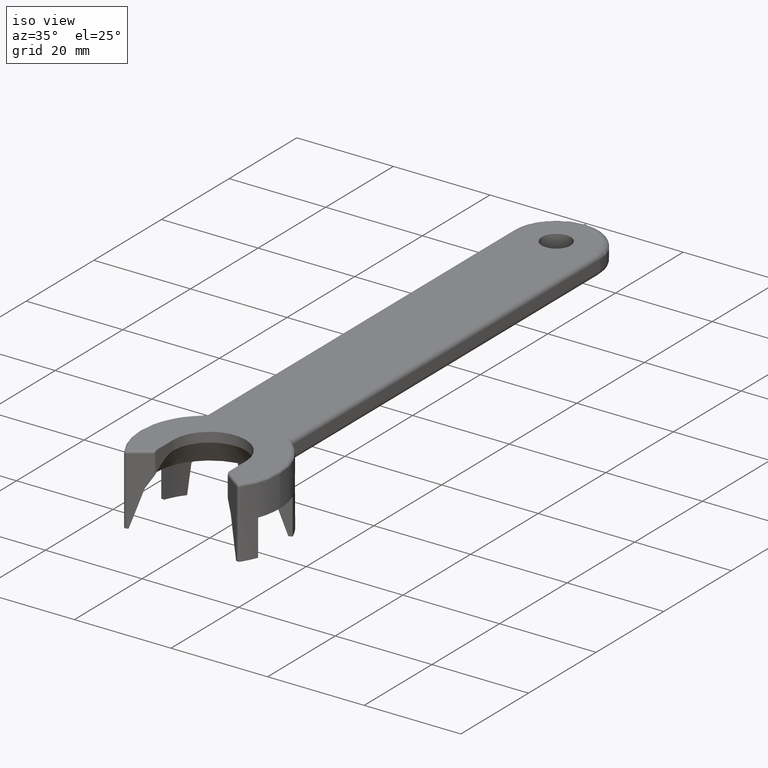
[diagram: clean part render]
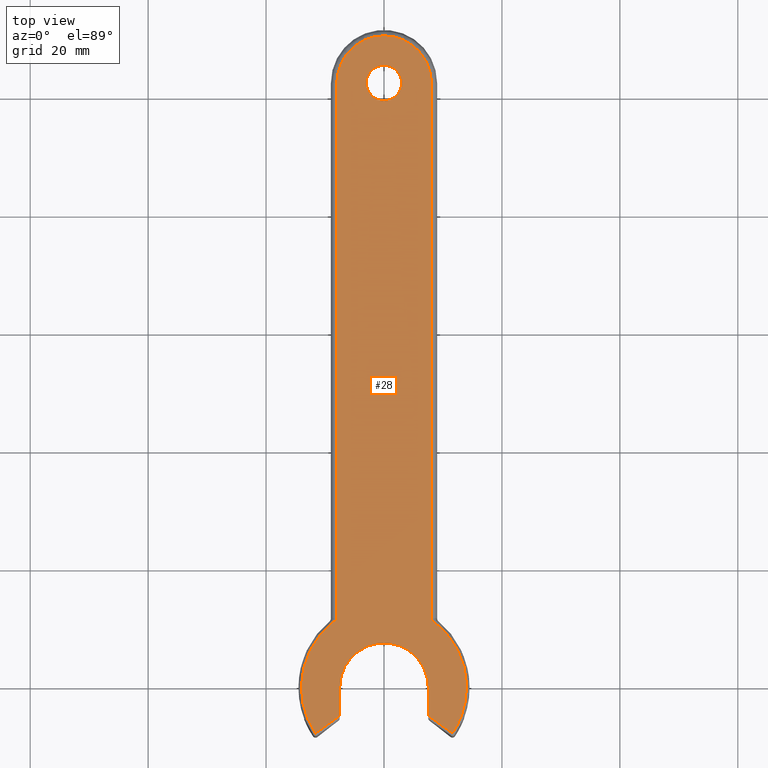
[diagram: tour spotlight — one face highlighted and labeled with its STEP entity id]
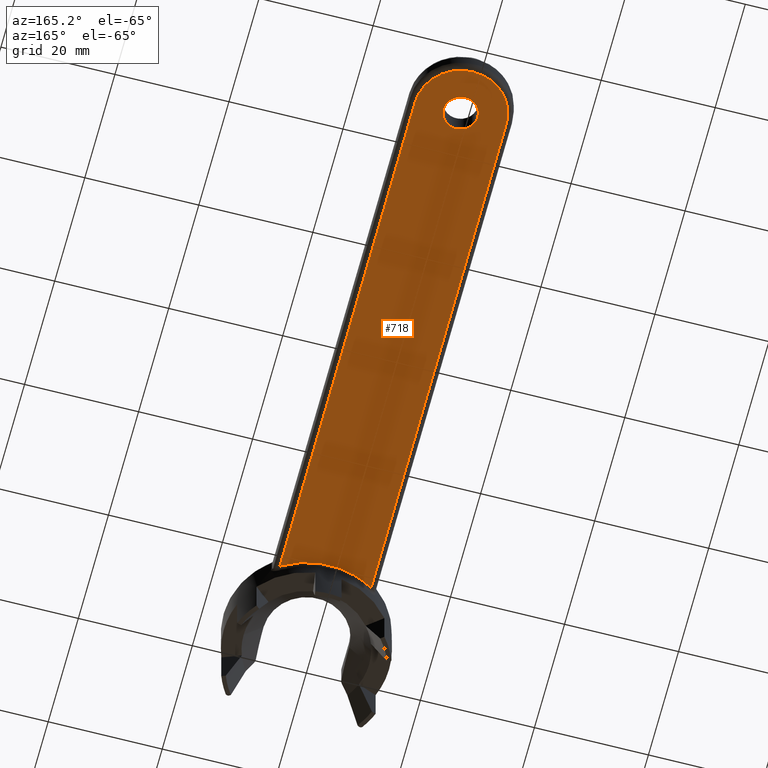
[diagram: tour spotlight — one face highlighted and labeled with its STEP entity id]
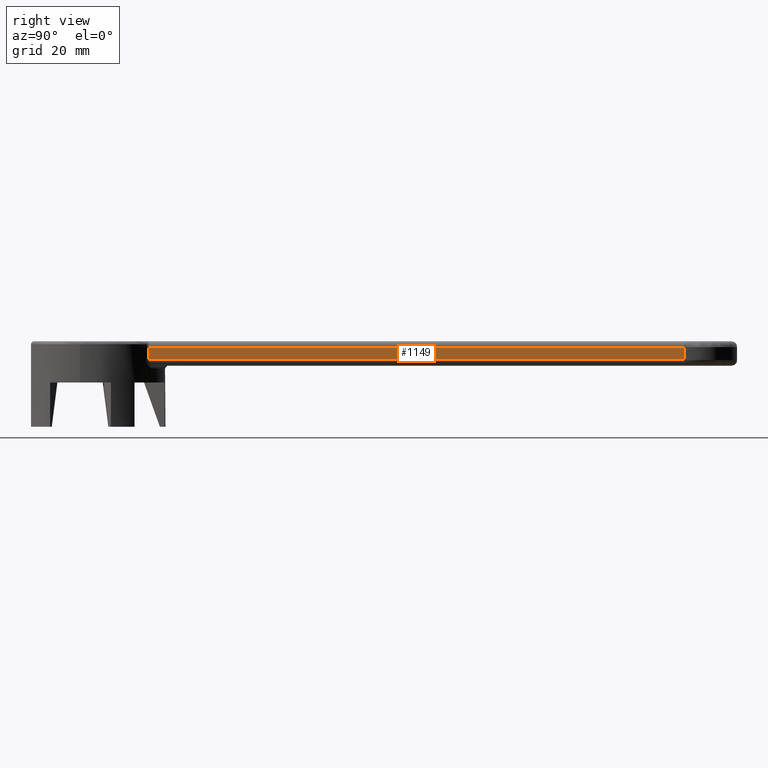
[diagram: tour spotlight — one face highlighted and labeled with its STEP entity id]
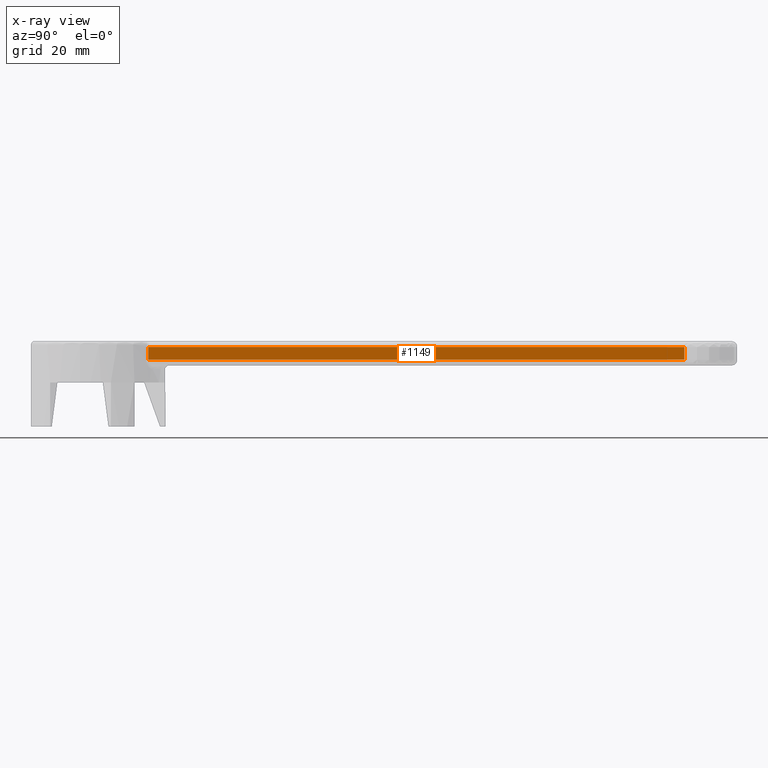
[diagram: x-ray of the same camera — body ghosted, this tour face saturated]
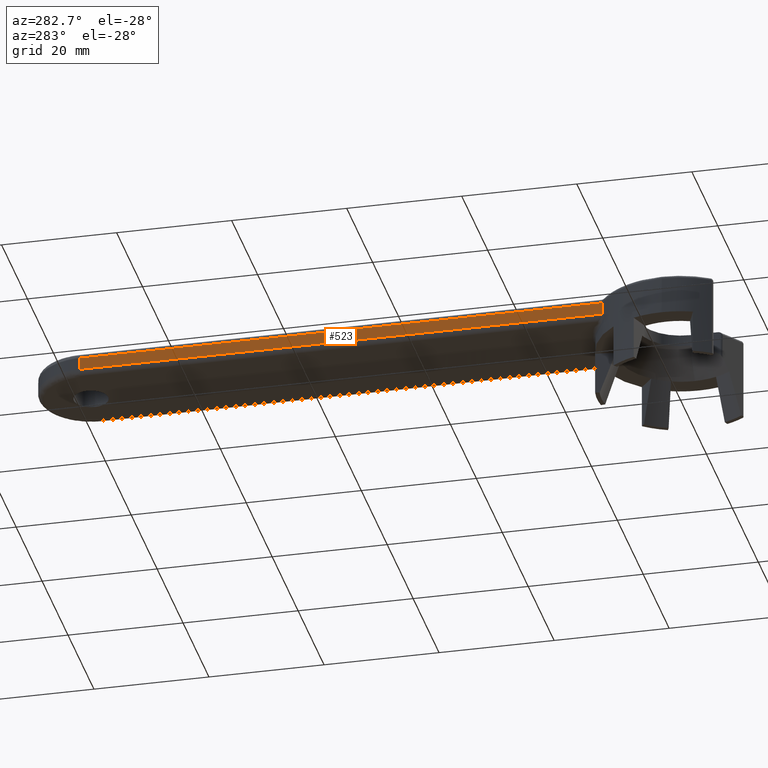
[diagram: tour spotlight — one face highlighted and labeled with its STEP entity id]
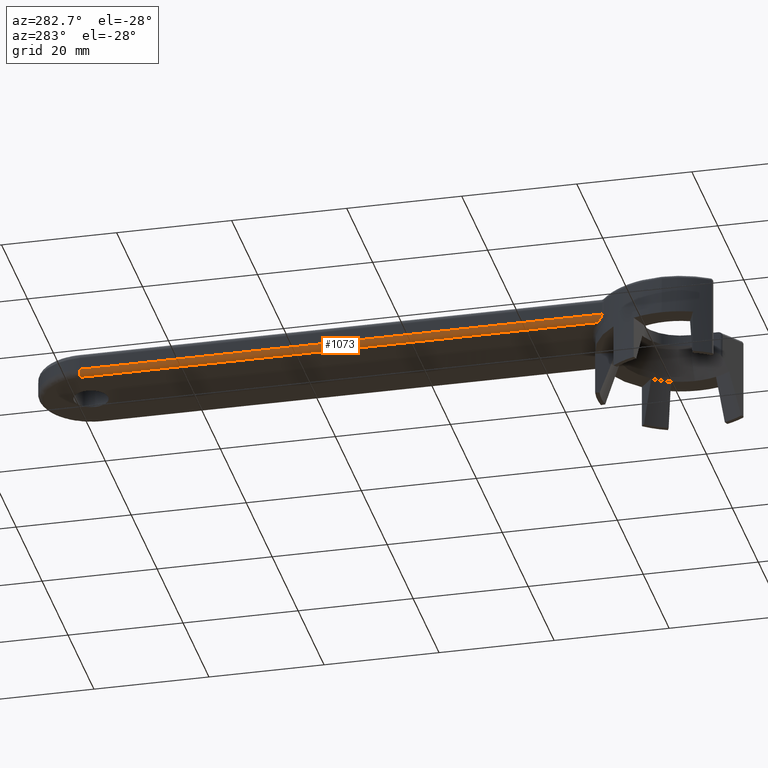
[diagram: tour spotlight — one face highlighted and labeled with its STEP entity id]
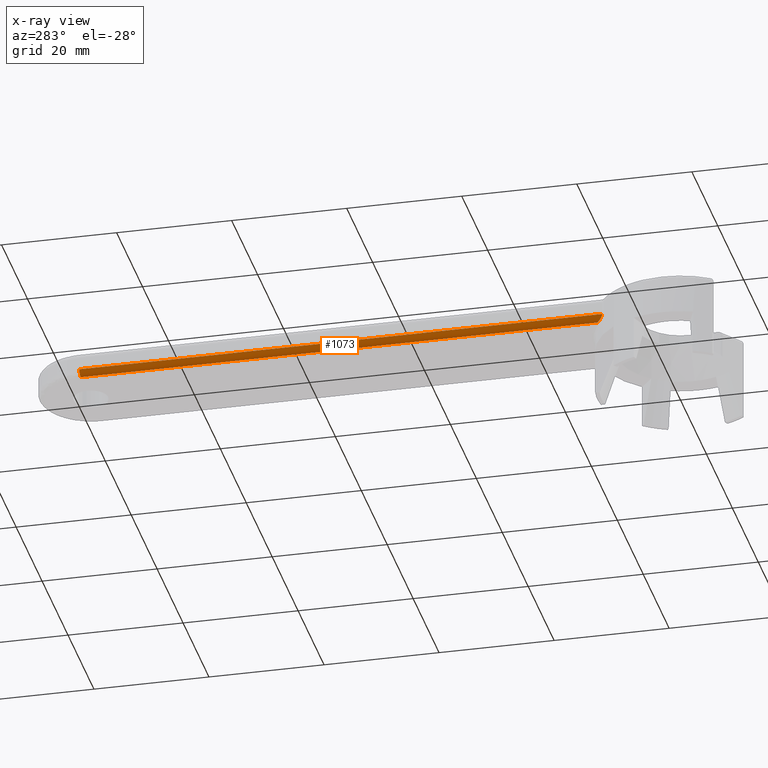
[diagram: x-ray of the same camera — body ghosted, this tour face saturated]
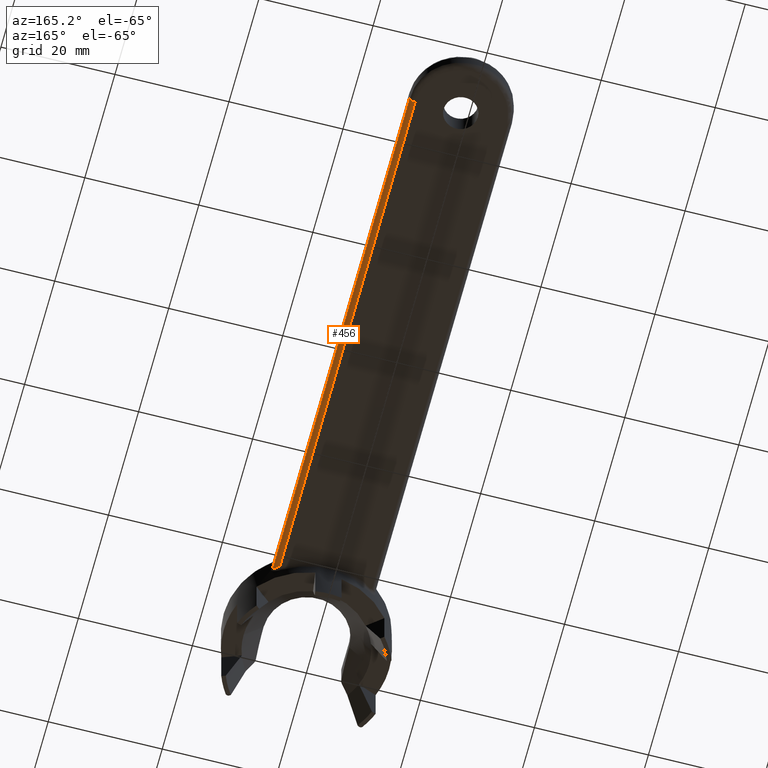
[diagram: tour spotlight — one face highlighted and labeled with its STEP entity id]
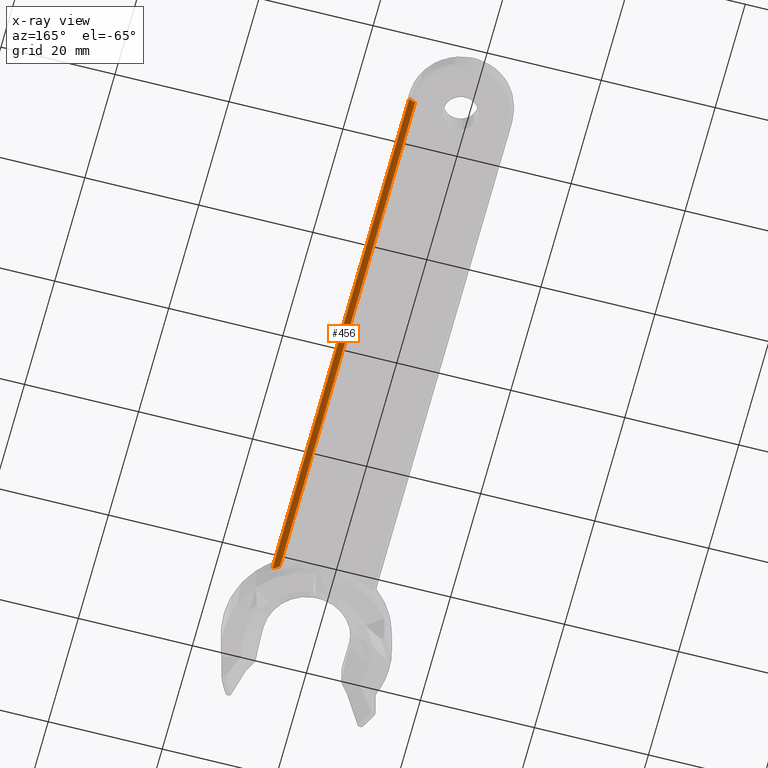
[diagram: x-ray of the same camera — body ghosted, this tour face saturated]
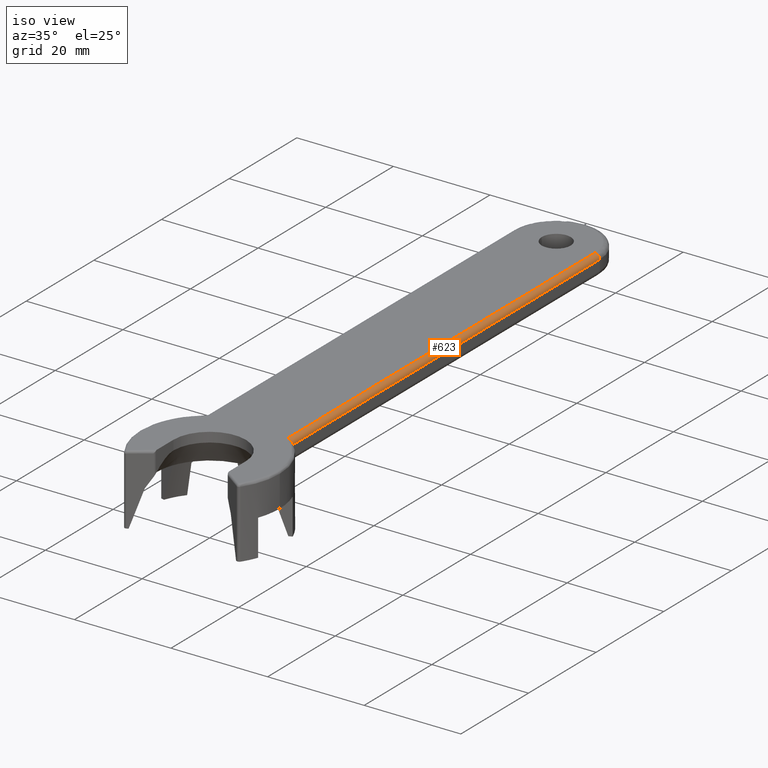
[diagram: tour spotlight — one face highlighted and labeled with its STEP entity id]
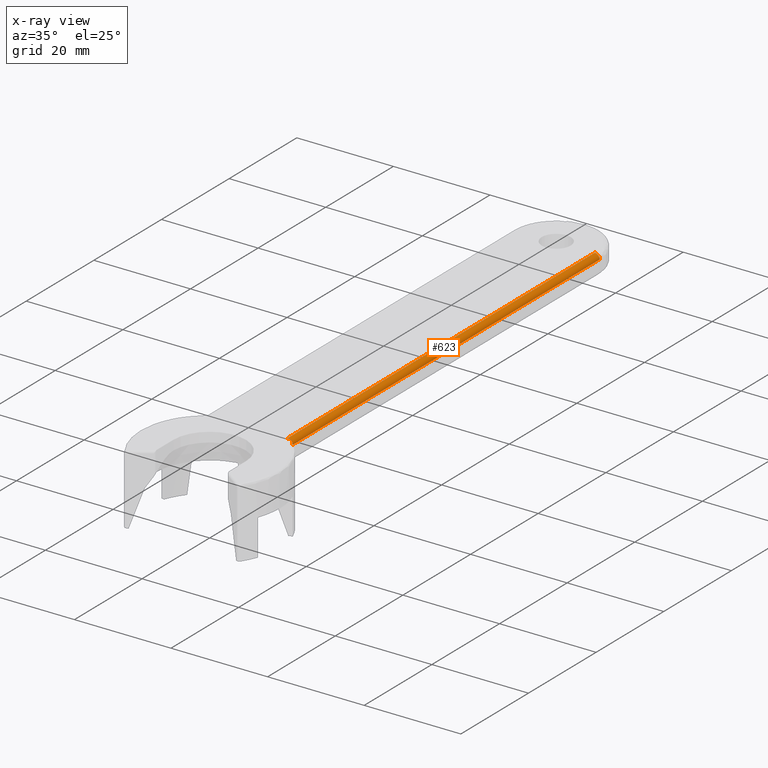
[diagram: x-ray of the same camera — body ghosted, this tour face saturated]
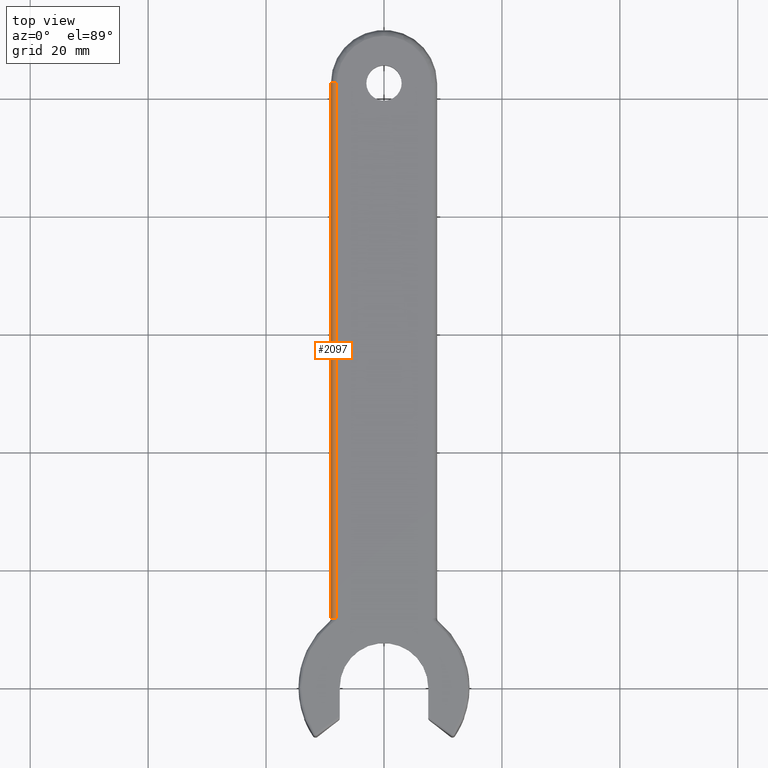
[diagram: tour spotlight — one face highlighted and labeled with its STEP entity id]
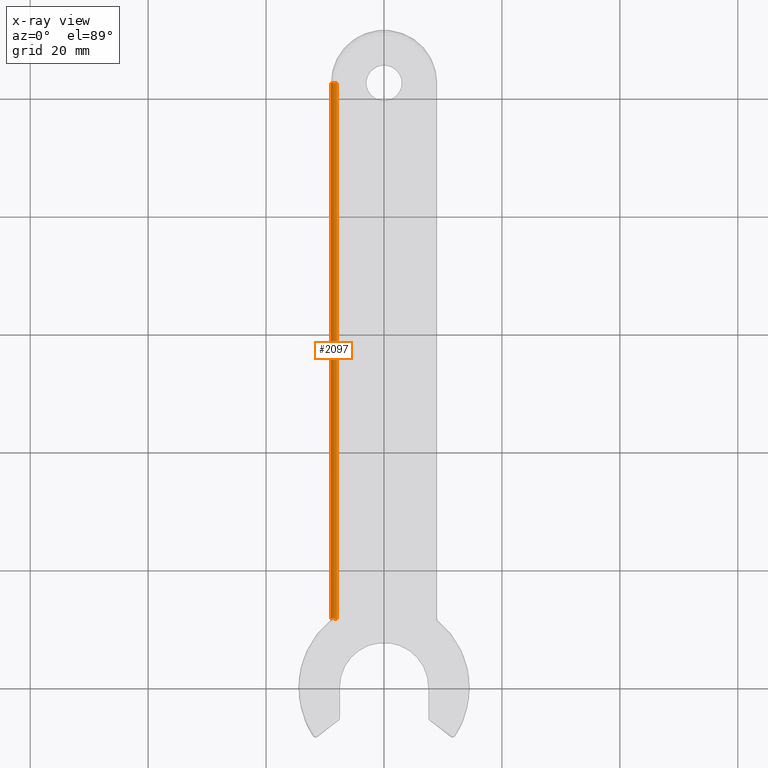
[diagram: x-ray of the same camera — body ghosted, this tour face saturated]
A machine part: a face-by-face anatomy tour. The part has 67 B-rep faces; the first image is the clean iso view, then the 8 largest visible faces are spotlighted one at a time (largest first), each with its STEP entity span.

Face 1 — top view, entity #28. In plain terms, the highlighted planar face has unit normal (0, 0, -1).
Definition (entity closure, byte-faithful):
#1 = CARTESIAN_POINT ( 'NONE',  ( -11.61290487828563100, -7.819235267977401100, 1.797370557854626400E-010 ) ) ;
#13 = EDGE_CURVE ( 'NONE', #999, #1227, #88, .T. ) ;
#14 = VECTOR ( 'NONE', #486, 1000.000000000000000 ) ;
#28 = ADVANCED_FACE ( 'NONE', ( #1623, #2187 ), #699, .F. ) ;
#62 = ORIENTED_EDGE ( 'NONE', *, *, #901, .F. ) ;
#88 = LINE ( 'NONE', #2373, #606 ) ;
#108 = DIRECTION ( 'NONE',  ( -0.0000000000000000000, -1.000000000000000000, -0.0000000000000000000 ) ) ;
#117 =( BOUNDED_CURVE ( )  B_SPLINE_CURVE ( 3, ( #1, #2461, #798, #2251 ),
 .UNSPECIFIED., .F., .F. ) 
 B_SPLINE_CURVE_WITH_KNOTS ( ( 4, 4 ),
 ( 0.0000000000000000000, 1.000000000000000000 ),
 .UNSPECIFIED. ) 
 CURVE ( )  GEOMETRIC_REPRESENTATION_ITEM ( )  RATIONAL_B_SPLINE_CURVE ( ( 0.9565783021431113500, 0.9287889763851884300, 0.9287889763851884300, 0.9565783021431113500 ) ) 
 REPRESENTATION_ITEM ( '' )  );
#123 = DIRECTION ( 'NONE',  ( 1.000000000000000000, 0.0000000000000000000, 0.0000000000000000000 ) ) ;
#156 = CARTESIAN_POINT ( 'NONE',  ( -7.999999996806321800, 102.4771138584383000, -8.202105781661736200E-011 ) ) ;
#176 = EDGE_CURVE ( 'NONE', #2583, #2522, #1385, .T. ) ;
#204 = VECTOR ( 'NONE', #1297, 1000.000000000000100 ) ;
#313 = EDGE_LOOP ( 'NONE', ( #1432, #62 ) ) ;
#377 = CARTESIAN_POINT ( 'NONE',  ( -7.999999942113717600, 11.48912527852774800, 7.605571973121205900E-011 ) ) ;
#385 =( BOUNDED_CURVE ( )  B_SPLINE_CURVE ( 3, ( #156, #1975, #961, #2423 ),
 .UNSPECIFIED., .F., .T. ) 
 B_SPLINE_CURVE_WITH_KNOTS ( ( 4, 4 ),
 ( 0.0000000000000000000, 1.000000000000000000 ),
 .UNSPECIFIED. ) 
 CURVE ( )  GEOMETRIC_REPRESENTATION_ITEM ( )  RATIONAL_B_SPLINE_CURVE ( ( 0.9565783021650554600, 0.3188594340550181500, 0.3188594340550181500, 0.9565783021650554600 ) ) 
 REPRESENTATION_ITEM ( '' )  );
#452 = LINE ( 'NONE', #2611, #862 ) ;
#486 = DIRECTION ( 'NONE',  ( -0.8090169943751939200, 0.5877852522921338500, -7.017103855819487500E-016 ) ) ;
#500 = ORIENTED_EDGE ( 'NONE', *, *, #1872, .F. ) ;
#571 = CARTESIAN_POINT ( 'NONE',  ( 0.0000000000000000000, 102.4771138420000100, 0.0000000000000000000 ) ) ;
#594 = AXIS2_PLACEMENT_3D ( 'NONE', #571, #1403, #1586 ) ;
#597 = CARTESIAN_POINT ( 'NONE',  ( 7.999999991983998800, 51.32893928199999300, 0.0000000000000000000 ) ) ;
#606 = VECTOR ( 'NONE', #108, 1000.000000000000000 ) ;
#611 = VERTEX_POINT ( 'NONE', #854 ) ;
#620 = CARTESIAN_POINT ( 'NONE',  ( 7.499999994256000900, 51.32893928199999300, 0.0000000000000000000 ) ) ;
#630 = CIRCLE ( 'NONE', #594, 3.000000000000000000 ) ;
#647 = CARTESIAN_POINT ( 'NONE',  ( 7.999999995974611100, 102.4771138625478700, -5.126305271519371900E-011 ) ) ;
#665 = CARTESIAN_POINT ( 'NONE',  ( 7.999999938605369300, 11.48912527992052000, 7.605571913098305200E-011 ) ) ;
#692 = DIRECTION ( 'NONE',  ( -1.000000000000000000, 0.0000000000000000000, 0.0000000000000000000 ) ) ;
#698 = CARTESIAN_POINT ( 'NONE',  ( -11.61290487828563100, -7.819235267977401100, 1.797370557854626400E-010 ) ) ;
#699 = PLANE ( 'NONE',  #2382 ) ;
#706 = ORIENTED_EDGE ( 'NONE', *, *, #1572, .F. ) ;
#791 = CARTESIAN_POINT ( 'NONE',  ( 0.0000000000000000000, 0.0000000000000000000, 0.0000000000000000000 ) ) ;
#798 = CARTESIAN_POINT ( 'NONE',  ( -14.00000000058661700, -2.806700662718808500, 2.661945843908155400E-010 ) ) ;
#805 = EDGE_CURVE ( 'NONE', #1260, #2337, #890, .T. ) ;
#847 = CARTESIAN_POINT ( 'NONE',  ( 7.499999997127999600, -4.831034952682255600, 2.122816678684565900E-010 ) ) ;
#854 = CARTESIAN_POINT ( 'NONE',  ( -7.999999942113717600, 11.48912527852774800, 7.605571973121205900E-011 ) ) ;
#862 = VECTOR ( 'NONE', #2172, 1000.000000000000000 ) ;
#889 =( BOUNDED_CURVE ( )  B_SPLINE_CURVE ( 3, ( #2678, #1399, #1583, #377 ),
 .UNSPECIFIED., .F., .F. ) 
 B_SPLINE_CURVE_WITH_KNOTS ( ( 4, 4 ),
 ( 0.0000000000000000000, 1.000000000000000000 ),
 .UNSPECIFIED. ) 
 CURVE ( )  GEOMETRIC_REPRESENTATION_ITEM ( )  RATIONAL_B_SPLINE_CURVE ( ( 0.9565783021659146600, 0.8837363745172752700, 0.8832848011118454900, 0.9552235819496253100 ) ) 
 REPRESENTATION_ITEM ( '' )  );
#890 =( BOUNDED_CURVE ( )  B_SPLINE_CURVE ( 3, ( #2304, #2037, #2691, #2457 ),
 .UNSPECIFIED., .F., .F. ) 
 B_SPLINE_CURVE_WITH_KNOTS ( ( 4, 4 ),
 ( 0.0000000000000000000, 1.000000000000000000 ),
 .UNSPECIFIED. ) 
 CURVE ( )  GEOMETRIC_REPRESENTATION_ITEM ( )  RATIONAL_B_SPLINE_CURVE ( ( 0.9529289632725673800, 0.7712251224711897900, 0.7724415687689978300, 0.9565783021659914900 ) ) 
 REPRESENTATION_ITEM ( '' )  );
#901 = EDGE_CURVE ( 'NONE', #2522, #2583, #630, .T. ) ;
#961 = CARTESIAN_POINT ( 'NONE',  ( 8.000000000135546700, 118.4771138422623000, -2.050530805075774100E-010 ) ) ;
#999 = VERTEX_POINT ( 'NONE', #1208 ) ;
#1004 = DIRECTION ( 'NONE',  ( 1.000000000000000000, 0.0000000000000000000, 0.0000000000000000000 ) ) ;
#1090 = VECTOR ( 'NONE', #2281, 1000.000000000000000 ) ;
#1107 = CARTESIAN_POINT ( 'NONE',  ( 14.16799999999999900, -8.529013371999999600, 0.0000000000000000000 ) ) ;
#1116 = EDGE_CURVE ( 'NONE', #611, #1519, #452, .T. ) ;
#1200 = CARTESIAN_POINT ( 'NONE',  ( -7.999999996806321800, 102.4771138584383000, -8.202105781661736200E-011 ) ) ;
#1208 = CARTESIAN_POINT ( 'NONE',  ( -7.499999997128002200, 0.0000000000000000000, 0.0000000000000000000 ) ) ;
#1212 = EDGE_CURVE ( 'NONE', #1227, #1939, #1874, .T. ) ;
#1227 = VERTEX_POINT ( 'NONE', #2106 ) ;
#1232 = VERTEX_POINT ( 'NONE', #647 ) ;
#1260 = VERTEX_POINT ( 'NONE', #665 ) ;
#1265 = CARTESIAN_POINT ( 'NONE',  ( 7.475322586539585100, -4.813105747598148000, 2.830417107288485400E-010 ) ) ;
#1297 = DIRECTION ( 'NONE',  ( -0.8090169943747208500, -0.5877852522927848900, 1.403420772379112300E-015 ) ) ;
#1299 = VERTEX_POINT ( 'NONE', #847 ) ;
#1308 = CARTESIAN_POINT ( 'NONE',  ( -11.61290484803344100, -7.819235317854918300, 3.098234559531509700E-010 ) ) ;
#1318 = EDGE_CURVE ( 'NONE', #1299, #1636, #1618, .T. ) ;
#1321 = CIRCLE ( 'NONE', #1327, 7.500000000000000000 ) ;
#1327 = AXIS2_PLACEMENT_3D ( 'NONE', #791, #2245, #1004 ) ;
#1338 = DIRECTION ( 'NONE',  ( 0.0000000000000000000, -0.0000000000000000000, 1.000000000000000000 ) ) ;
#1361 = EDGE_CURVE ( 'NONE', #2337, #1299, #1558, .T. ) ;
#1385 = CIRCLE ( 'NONE', #2170, 3.000000000000000000 ) ;
#1399 = CARTESIAN_POINT ( 'NONE',  ( -14.00000000055784200, 4.673297576025943200, 2.661945852578316700E-010 ) ) ;
#1403 = DIRECTION ( 'NONE',  ( 0.0000000000000000000, -0.0000000000000000000, 1.000000000000000000 ) ) ;
#1432 = ORIENTED_EDGE ( 'NONE', *, *, #176, .F. ) ;
#1485 = ORIENTED_EDGE ( 'NONE', *, *, #1116, .F. ) ;
#1490 = ORIENTED_EDGE ( 'NONE', *, *, #13, .F. ) ;
#1519 = VERTEX_POINT ( 'NONE', #1200 ) ;
#1530 = EDGE_CURVE ( 'NONE', #1636, #999, #1321, .T. ) ;
#1558 = LINE ( 'NONE', #1265, #14 ) ;
#1572 = EDGE_CURVE ( 'NONE', #1939, #1784, #117, .T. ) ;
#1583 = CARTESIAN_POINT ( 'NONE',  ( -11.83711079138673800, 8.817304286536584700, 2.661945852536470700E-010 ) ) ;
#1586 = DIRECTION ( 'NONE',  ( 1.000000000000000000, 0.0000000000000000000, 0.0000000000000000000 ) ) ;
#1609 = CARTESIAN_POINT ( 'NONE',  ( 7.499999997128000500, 0.0000000000000000000, 0.0000000000000000000 ) ) ;
#1610 = CARTESIAN_POINT ( 'NONE',  ( 3.000000000000000000, 102.4771138420000100, 0.0000000000000000000 ) ) ;
#1618 = LINE ( 'NONE', #620, #1090 ) ;
#1623 = FACE_BOUND ( 'NONE', #313, .T. ) ;
#1636 = VERTEX_POINT ( 'NONE', #1609 ) ;
#1784 = VERTEX_POINT ( 'NONE', #2167 ) ;
#1872 = EDGE_CURVE ( 'NONE', #1519, #1232, #385, .T. ) ;
#1874 = LINE ( 'NONE', #1308, #204 ) ;
#1888 = ORIENTED_EDGE ( 'NONE', *, *, #2431, .F. ) ;
#1918 = ORIENTED_EDGE ( 'NONE', *, *, #1530, .F. ) ;
#1939 = VERTEX_POINT ( 'NONE', #698 ) ;
#1975 = CARTESIAN_POINT ( 'NONE',  ( -8.000000000135546700, 118.4771138422623000, -2.050530805075774100E-010 ) ) ;
#1987 = ORIENTED_EDGE ( 'NONE', *, *, #1212, .F. ) ;
#2013 = CARTESIAN_POINT ( 'NONE',  ( -3.000000000000000000, 102.4771138420000100, 0.0000000000000000000 ) ) ;
#2033 = DIRECTION ( 'NONE',  ( -0.0000000000000000000, -1.000000000000000000, -0.0000000000000000000 ) ) ;
#2037 = CARTESIAN_POINT ( 'NONE',  ( 14.65219875250945600, 6.857128634541652400, 2.661945790915442100E-010 ) ) ;
#2106 = CARTESIAN_POINT ( 'NONE',  ( -7.500000000000000000, -4.831035001863423200, 3.098174386310936800E-010 ) ) ;
#2135 = DIRECTION ( 'NONE',  ( 0.0000000000000000000, 0.0000000000000000000, -1.000000000000000000 ) ) ;
#2167 = CARTESIAN_POINT ( 'NONE',  ( -13.99999999756284000, 3.532869830014107000E-009, 1.597167516206775400E-010 ) ) ;
#2170 = AXIS2_PLACEMENT_3D ( 'NONE', #2607, #1338, #123 ) ;
#2172 = DIRECTION ( 'NONE',  ( 0.0000000000000000000, 1.000000000000000000, 0.0000000000000000000 ) ) ;
#2178 = CARTESIAN_POINT ( 'NONE',  ( 11.61290487832630800, -7.819235267891957400, 1.986851721799116100E-011 ) ) ;
#2187 = FACE_OUTER_BOUND ( 'NONE', #2500, .T. ) ;
#2245 = DIRECTION ( 'NONE',  ( 0.0000000000000000000, 0.0000000000000000000, 1.000000000000000000 ) ) ;
#2251 = CARTESIAN_POINT ( 'NONE',  ( -13.99999999756284000, 3.532869830014107000E-009, 1.597167516206775400E-010 ) ) ;
#2281 = DIRECTION ( 'NONE',  ( 0.0000000000000000000, 1.000000000000000000, 0.0000000000000000000 ) ) ;
#2290 = VECTOR ( 'NONE', #2033, 1000.000000000000000 ) ;
#2304 = CARTESIAN_POINT ( 'NONE',  ( 7.999999938605369300, 11.48912527992052000, 7.605571913098305200E-011 ) ) ;
#2337 = VERTEX_POINT ( 'NONE', #2178 ) ;
#2347 = ORIENTED_EDGE ( 'NONE', *, *, #1318, .F. ) ;
#2373 = CARTESIAN_POINT ( 'NONE',  ( -7.499999994256003600, 51.32893928199999300, 0.0000000000000000000 ) ) ;
#2382 = AXIS2_PLACEMENT_3D ( 'NONE', #1107, #2135, #692 ) ;
#2423 = CARTESIAN_POINT ( 'NONE',  ( 7.999999995974611100, 102.4771138625478700, -5.126305271519371900E-011 ) ) ;
#2431 = EDGE_CURVE ( 'NONE', #1784, #611, #889, .T. ) ;
#2457 = CARTESIAN_POINT ( 'NONE',  ( 11.61290487832630800, -7.819235267891957400, 1.986851721799116100E-011 ) ) ;
#2461 = CARTESIAN_POINT ( 'NONE',  ( -13.18049436527504900, -5.491096148110525400, 2.661945843908155400E-010 ) ) ;
#2500 = EDGE_LOOP ( 'NONE', ( #2552, #2666, #2697, #500, #1485, #1888, #706, #1987, #1490, #1918, #2347 ) ) ;
#2506 = LINE ( 'NONE', #597, #2290 ) ;
#2522 = VERTEX_POINT ( 'NONE', #2013 ) ;
#2552 = ORIENTED_EDGE ( 'NONE', *, *, #1361, .F. ) ;
#2556 = EDGE_CURVE ( 'NONE', #1232, #1260, #2506, .T. ) ;
#2583 = VERTEX_POINT ( 'NONE', #1610 ) ;
#2607 = CARTESIAN_POINT ( 'NONE',  ( 0.0000000000000000000, 102.4771138420000100, 0.0000000000000000000 ) ) ;
#2611 = CARTESIAN_POINT ( 'NONE',  ( -7.999999991983995300, 51.32893928199999300, 0.0000000000000000000 ) ) ;
#2666 = ORIENTED_EDGE ( 'NONE', *, *, #805, .F. ) ;
#2678 = CARTESIAN_POINT ( 'NONE',  ( -13.99999999756284000, 3.532869830014107000E-009, 1.597167516206775400E-010 ) ) ;
#2691 = CARTESIAN_POINT ( 'NONE',  ( 16.13310916624838500, -1.105956988059987300, 2.661945791257161800E-010 ) ) ;
#2697 = ORIENTED_EDGE ( 'NONE', *, *, #2556, .F. ) ;

Face 2 — auxiliary view, entity #718. In plain terms, the highlighted planar face has unit normal (0, 0, 1).
Definition (entity closure, byte-faithful):
#15 = CARTESIAN_POINT ( 'NONE',  ( 7.999999999937709400, 102.4771138296289600, -4.149999999948736500 ) ) ;
#61 = DIRECTION ( 'NONE',  ( 1.000000000000000000, 0.0000000000000000000, 0.0000000000000000000 ) ) ;
#73 = CARTESIAN_POINT ( 'NONE',  ( 7.999999999859194400, 12.68857754721193000, -4.149999999923943900 ) ) ;
#79 = CARTESIAN_POINT ( 'NONE',  ( 6.286585323700612600, 13.61912588530796600, -4.149999999999999500 ) ) ;
#91 = CARTESIAN_POINT ( 'NONE',  ( 1.441255637609323700, 14.94806975829845200, -4.149999999999999500 ) ) ;
#102 = CARTESIAN_POINT ( 'NONE',  ( -4.581030225448212300, 14.28765386420323900, -4.149999999999998600 ) ) ;
#130 = CARTESIAN_POINT ( 'NONE',  ( -7.999999999937709400, 102.4771138296289800, -4.149999999948736500 ) ) ;
#133 = DIRECTION ( 'NONE',  ( 1.000000000000000000, 0.0000000000000000000, 0.0000000000000000000 ) ) ;
#185 = ORIENTED_EDGE ( 'NONE', *, *, #542, .F. ) ;
#219 = VERTEX_POINT ( 'NONE', #1271 ) ;
#221 = CARTESIAN_POINT ( 'NONE',  ( -8.000000000135530700, 118.4771138422622600, -4.149999999794947500 ) ) ;
#240 = ORIENTED_EDGE ( 'NONE', *, *, #2276, .F. ) ;
#253 = EDGE_CURVE ( 'NONE', #219, #1669, #2285, .T. ) ;
#279 = CARTESIAN_POINT ( 'NONE',  ( 5.890687726253878200, 13.79937243357649200, -4.149999999999999500 ) ) ;
#287 = CARTESIAN_POINT ( 'NONE',  ( -0.3609769037307217200, 15.00001323584039200, -4.149999999999997700 ) ) ;
#293 = CARTESIAN_POINT ( 'NONE',  ( -5.647475409304603600, 13.89821021405081500, -4.149999999999999500 ) ) ;
#476 = CARTESIAN_POINT ( 'NONE',  ( 4.829584761642482100, 14.20314487420981600, -4.149999999999999500 ) ) ;
#485 = CARTESIAN_POINT ( 'NONE',  ( -1.439466905605461000, 14.93189453623750900, -4.149999999999999500 ) ) ;
#496 = CARTESIAN_POINT ( 'NONE',  ( -6.049502333254222800, 13.72608518554348900, -4.149999999999999500 ) ) ;
#506 = DIRECTION ( 'NONE',  ( -0.0000000000000000000, -1.000000000000000000, -0.0000000000000000000 ) ) ;
#542 = EDGE_CURVE ( 'NONE', #2255, #2191, #796, .T. ) ;
#600 = B_SPLINE_CURVE_WITH_KNOTS ( 'NONE', 3,
 ( #664, #1884, #2324, #1081, #2564, #1296, #79, #1494, #279, #1687, #476, #1896, #675, #2114, #887, #2342, #1091, #2572, #1306, #91, #1502, #287, #1700, #485, #1902, #687, #2127, #895, #2350, #1102, #2580, #1314, #102, #1508, #293, #1707, #496, #1909, #694, #2141, #907, #2353 ),
 .UNSPECIFIED., .F., .F.,
 ( 4, 1, 1, 1, 2, 2, 1, 1, 2, 2, 1, 2, 2, 2, 1, 2, 2, 1, 1, 2, 2, 1, 1, 1, 2, 2, 4 ),
 ( 0.0000000000000000000, 0.06249999999999984700, 0.09374999999999977800, 0.1093749999999997400, 0.1171874999999998500, 0.1249999999999999700, 0.1875000000000000300, 0.2187500000000000300, 0.2343750000000000000, 0.2500000000000000000, 0.3125000000000002800, 0.3437500000000003900, 0.3750000000000004400, 0.5000000000000010000, 0.5625000000000013300, 0.5937500000000014400, 0.6250000000000015500, 0.6875000000000018900, 0.7187500000000018900, 0.7343750000000018900, 0.7500000000000017800, 0.8125000000000016700, 0.8437500000000015500, 0.8593750000000015500, 0.8671875000000016700, 0.8750000000000016700, 1.000000000000000000 ),
 .UNSPECIFIED. ) ;
#604 = FACE_BOUND ( 'NONE', #1826, .T. ) ;
#664 = CARTESIAN_POINT ( 'NONE',  ( 7.999999999859194400, 12.68857754721193000, -4.149999999923943900 ) ) ;
#668 = CIRCLE ( 'NONE', #1096, 3.000000000000000000 ) ;
#675 = CARTESIAN_POINT ( 'NONE',  ( 4.413068368979404400, 14.33640257217888000, -4.149999999999999500 ) ) ;
#677 = LINE ( 'NONE', #877, #1629 ) ;
#687 = CARTESIAN_POINT ( 'NONE',  ( -1.978940033248197400, 14.86995318064979300, -4.149999999999999500 ) ) ;
#694 = CARTESIAN_POINT ( 'NONE',  ( -6.170640044392298400, 13.67205035312180300, -4.149999999999999500 ) ) ;
#718 = ADVANCED_FACE ( 'NONE', ( #604, #2051 ), #830, .F. ) ;
#781 = AXIS2_PLACEMENT_3D ( 'NONE', #1677, #1033, #61 ) ;
#796 = LINE ( 'NONE', #1378, #2395 ) ;
#806 = EDGE_LOOP ( 'NONE', ( #1719, #240, #1850, #185 ) ) ;
#830 = PLANE ( 'NONE',  #781 ) ;
#863 = CARTESIAN_POINT ( 'NONE',  ( 7.999999999937709400, 102.4771138296289800, -4.149999999948736500 ) ) ;
#877 = CARTESIAN_POINT ( 'NONE',  ( -8.000000000000000000, 61.58284569150000500, -4.149999999999999500 ) ) ;
#887 = CARTESIAN_POINT ( 'NONE',  ( 3.902679310360318800, 14.48782613082532800, -4.149999999999999500 ) ) ;
#895 = CARTESIAN_POINT ( 'NONE',  ( -3.035611274546542700, 14.69726533448992700, -4.149999999999999500 ) ) ;
#907 = CARTESIAN_POINT ( 'NONE',  ( -7.424838637120961600, 13.05121006422699600, -4.149999999999999500 ) ) ;
#989 = CARTESIAN_POINT ( 'NONE',  ( -7.999999978251388200, 12.68857756887428100, -4.149999999955634100 ) ) ;
#1017 = DIRECTION ( 'NONE',  ( 1.000000000000000000, 0.0000000000000000000, 0.0000000000000000000 ) ) ;
#1033 = DIRECTION ( 'NONE',  ( 0.0000000000000000000, 0.0000000000000000000, 1.000000000000000000 ) ) ;
#1071 = VERTEX_POINT ( 'NONE', #130 ) ;
#1081 = CARTESIAN_POINT ( 'NONE',  ( 6.746051126569688500, 13.39931654270172200, -4.150000000000000400 ) ) ;
#1091 = CARTESIAN_POINT ( 'NONE',  ( 2.859986767193842400, 14.72593963620121600, -4.149999999999998600 ) ) ;
#1092 = CARTESIAN_POINT ( 'NONE',  ( 0.0000000000000000000, 102.4771138420000100, -4.149999999999999500 ) ) ;
#1096 = AXIS2_PLACEMENT_3D ( 'NONE', #1092, #2292, #1017 ) ;
#1102 = CARTESIAN_POINT ( 'NONE',  ( -3.901500708640949000, 14.48400783177045700, -4.149999999999999500 ) ) ;
#1123 = ORIENTED_EDGE ( 'NONE', *, *, #1236, .F. ) ;
#1225 = CARTESIAN_POINT ( 'NONE',  ( 8.000000000135530700, 118.4771138422622600, -4.149999999794947500 ) ) ;
#1236 = EDGE_CURVE ( 'NONE', #1669, #219, #668, .T. ) ;
#1271 = CARTESIAN_POINT ( 'NONE',  ( 3.000000000000000000, 102.4771138420000100, -4.149999999999999500 ) ) ;
#1296 = CARTESIAN_POINT ( 'NONE',  ( 6.363607667718176800, 13.58330799272171800, -4.149999999999999500 ) ) ;
#1306 = CARTESIAN_POINT ( 'NONE',  ( 2.334325127671149900, 14.81834352320823100, -4.149999999999999500 ) ) ;
#1314 = CARTESIAN_POINT ( 'NONE',  ( -4.161390055218428000, 14.41146750419164300, -4.149999999999998600 ) ) ;
#1348 = DIRECTION ( 'NONE',  ( -0.0000000000000000000, 0.0000000000000000000, -1.000000000000000000 ) ) ;
#1378 = CARTESIAN_POINT ( 'NONE',  ( 8.000000000000000000, 61.58284569150000500, -4.149999999999999500 ) ) ;
#1494 = CARTESIAN_POINT ( 'NONE',  ( 6.249131890178700700, 13.63635651185571400, -4.149999999999999500 ) ) ;
#1502 = CARTESIAN_POINT ( 'NONE',  ( 0.7219538074614446600, 14.99997352838208500, -4.149999999999999500 ) ) ;
#1508 = CARTESIAN_POINT ( 'NONE',  ( -5.078312661534747400, 14.12183625719181300, -4.149999999999999500 ) ) ;
#1614 = EDGE_CURVE ( 'NONE', #2191, #1071, #1797, .T. ) ;
#1622 = CARTESIAN_POINT ( 'NONE',  ( -7.999999999937709400, 102.4771138296289600, -4.149999999948736500 ) ) ;
#1629 = VECTOR ( 'NONE', #506, 1000.000000000000000 ) ;
#1659 = ORIENTED_EDGE ( 'NONE', *, *, #253, .F. ) ;
#1669 = VERTEX_POINT ( 'NONE', #1702 ) ;
#1677 = CARTESIAN_POINT ( 'NONE',  ( -8.000000000000000000, 12.10184632300000200, -4.149999999999999500 ) ) ;
#1687 = CARTESIAN_POINT ( 'NONE',  ( 5.406226616355332300, 13.99957913774206000, -4.150000000000000400 ) ) ;
#1700 = CARTESIAN_POINT ( 'NONE',  ( -0.9011734852361100700, 14.98055925898064100, -4.150000000000000400 ) ) ;
#1702 = CARTESIAN_POINT ( 'NONE',  ( -3.000000000000000000, 102.4771138420000100, -4.149999999999999500 ) ) ;
#1707 = CARTESIAN_POINT ( 'NONE',  ( -5.929306759606753000, 13.77885415040672400, -4.149999999999999500 ) ) ;
#1719 = ORIENTED_EDGE ( 'NONE', *, *, #2246, .T. ) ;
#1797 =( BOUNDED_CURVE ( )  B_SPLINE_CURVE ( 3, ( #15, #1225, #221, #1622 ),
 .UNSPECIFIED., .F., .F. ) 
 B_SPLINE_CURVE_WITH_KNOTS ( ( 4, 4 ),
 ( 0.0000000000000000000, 1.000000000000000000 ),
 .UNSPECIFIED. ) 
 CURVE ( )  GEOMETRIC_REPRESENTATION_ITEM ( )  RATIONAL_B_SPLINE_CURVE ( ( 0.9565783021650607900, 0.3188594340550199300, 0.3188594340550199300, 0.9565783021650607900 ) ) 
 REPRESENTATION_ITEM ( '' )  );
#1826 = EDGE_LOOP ( 'NONE', ( #1659, #1123 ) ) ;
#1850 = ORIENTED_EDGE ( 'NONE', *, *, #1614, .F. ) ;
#1884 = CARTESIAN_POINT ( 'NONE',  ( 7.712568129782668300, 12.86979997831082500, -4.149999999999999500 ) ) ;
#1894 = DIRECTION ( 'NONE',  ( 0.0000000000000000000, 1.000000000000000000, 0.0000000000000000000 ) ) ;
#1896 = CARTESIAN_POINT ( 'NONE',  ( 4.580001703944576600, 14.28395688589769500, -4.149999999999999500 ) ) ;
#1902 = CARTESIAN_POINT ( 'NONE',  ( -1.797906261154795300, 14.89296011087911800, -4.149999999999999500 ) ) ;
#1909 = CARTESIAN_POINT ( 'NONE',  ( -6.129501762181927700, 13.69054668315497600, -4.150000000000000400 ) ) ;
#2051 = FACE_OUTER_BOUND ( 'NONE', #806, .T. ) ;
#2114 = CARTESIAN_POINT ( 'NONE',  ( 4.330977783990402200, 14.36142443753612800, -4.149999999999999500 ) ) ;
#2127 = CARTESIAN_POINT ( 'NONE',  ( -2.509253622479959800, 14.79295994937924200, -4.149999999999999500 ) ) ;
#2141 = CARTESIAN_POINT ( 'NONE',  ( -6.827940224236486200, 13.37317401484867400, -4.149999999999999500 ) ) ;
#2191 = VERTEX_POINT ( 'NONE', #863 ) ;
#2246 = EDGE_CURVE ( 'NONE', #2255, #2472, #600, .T. ) ;
#2255 = VERTEX_POINT ( 'NONE', #73 ) ;
#2276 = EDGE_CURVE ( 'NONE', #1071, #2472, #677, .T. ) ;
#2285 = CIRCLE ( 'NONE', #2632, 3.000000000000000000 ) ;
#2292 = DIRECTION ( 'NONE',  ( -0.0000000000000000000, 0.0000000000000000000, -1.000000000000000000 ) ) ;
#2324 = CARTESIAN_POINT ( 'NONE',  ( 7.273157322657624500, 13.12645328839068000, -4.150000000000000400 ) ) ;
#2342 = CARTESIAN_POINT ( 'NONE',  ( 3.384499368731565200, 14.62086514605287800, -4.149999999999999500 ) ) ;
#2350 = CARTESIAN_POINT ( 'NONE',  ( -3.642772311918487400, 14.55289419578622500, -4.150000000000001200 ) ) ;
#2353 = CARTESIAN_POINT ( 'NONE',  ( -7.999999978251388200, 12.68857756887428100, -4.149999999955634100 ) ) ;
#2395 = VECTOR ( 'NONE', #1894, 1000.000000000000000 ) ;
#2472 = VERTEX_POINT ( 'NONE', #989 ) ;
#2564 = CARTESIAN_POINT ( 'NONE',  ( 6.478882964915208700, 13.52910676799504900, -4.150000000000000400 ) ) ;
#2572 = CARTESIAN_POINT ( 'NONE',  ( 2.508904441744475000, 14.78977495739361600, -4.149999999999999500 ) ) ;
#2580 = CARTESIAN_POINT ( 'NONE',  ( -4.073656645025491400, 14.43652514045838600, -4.149999999999998600 ) ) ;
#2625 = CARTESIAN_POINT ( 'NONE',  ( 0.0000000000000000000, 102.4771138420000100, -4.149999999999999500 ) ) ;
#2632 = AXIS2_PLACEMENT_3D ( 'NONE', #2625, #1348, #133 ) ;

Face 3 — right view, entity #1149. An x-ray twin of the same camera follows (body ghosted, this face saturated) — the face is partly hidden behind the body. In plain terms, the highlighted planar face has unit normal (1, 0, 0).
Definition (entity closure, byte-faithful):
#106 = CARTESIAN_POINT ( 'NONE',  ( 9.000000000000001800, 11.60818677154407700, -1.000000000000000400 ) ) ;
#118 = VECTOR ( 'NONE', #153, 1000.000000000000000 ) ;
#137 = DIRECTION ( 'NONE',  ( 0.0000000000000000000, 1.000000000000000000, 0.0000000000000000000 ) ) ;
#153 = DIRECTION ( 'NONE',  ( 0.0000000000000000000, -1.000000000000000000, 0.0000000000000000000 ) ) ;
#198 = CARTESIAN_POINT ( 'NONE',  ( 9.000000000000001800, 11.60818676599999900, -3.149999999999999900 ) ) ;
#200 = CARTESIAN_POINT ( 'NONE',  ( 9.000000000000001800, 102.4771138420000100, -3.150000000044896900 ) ) ;
#206 = LINE ( 'NONE', #1108, #670 ) ;
#302 = EDGE_CURVE ( 'NONE', #1953, #1921, #1121, .T. ) ;
#324 = DIRECTION ( 'NONE',  ( 0.0000000000000000000, 0.0000000000000000000, 1.000000000000000000 ) ) ;
#527 = CARTESIAN_POINT ( 'NONE',  ( 9.000000000000000000, 11.60818676579489600, -2.075000000000000200 ) ) ;
#586 = VERTEX_POINT ( 'NONE', #200 ) ;
#616 = EDGE_CURVE ( 'NONE', #974, #586, #206, .T. ) ;
#670 = VECTOR ( 'NONE', #137, 1000.000000000000000 ) ;
#681 = AXIS2_PLACEMENT_3D ( 'NONE', #198, #990, #2463 ) ;
#841 = ORIENTED_EDGE ( 'NONE', *, *, #2039, .F. ) ;
#967 = LINE ( 'NONE', #1146, #1261 ) ;
#974 = VERTEX_POINT ( 'NONE', #2468 ) ;
#990 = DIRECTION ( 'NONE',  ( 1.000000000000000000, 0.0000000000000000000, 0.0000000000000000000 ) ) ;
#1108 = CARTESIAN_POINT ( 'NONE',  ( 9.000000000000001800, 57.04265030400000600, -3.149999999999999900 ) ) ;
#1121 = LINE ( 'NONE', #1368, #118 ) ;
#1146 = CARTESIAN_POINT ( 'NONE',  ( 9.000000000000001800, 102.4771138420000100, -2.075000000000000200 ) ) ;
#1149 = ADVANCED_FACE ( 'NONE', ( #1346 ), #2686, .T. ) ;
#1231 = ORIENTED_EDGE ( 'NONE', *, *, #302, .T. ) ;
#1245 = ORIENTED_EDGE ( 'NONE', *, *, #616, .T. ) ;
#1255 = EDGE_LOOP ( 'NONE', ( #1245, #2437, #1231, #841 ) ) ;
#1261 = VECTOR ( 'NONE', #1554, 1000.000000000000000 ) ;
#1325 = CARTESIAN_POINT ( 'NONE',  ( 8.999999999948737900, 102.4771138420000100, -0.9999999999667055200 ) ) ;
#1346 = FACE_OUTER_BOUND ( 'NONE', #1255, .T. ) ;
#1368 = CARTESIAN_POINT ( 'NONE',  ( 9.000000000000001800, 56.71015560200000000, -1.000000000000000000 ) ) ;
#1538 = LINE ( 'NONE', #527, #2027 ) ;
#1554 = DIRECTION ( 'NONE',  ( 0.0000000000000000000, 0.0000000000000000000, 1.000000000000000000 ) ) ;
#1842 = EDGE_CURVE ( 'NONE', #586, #1953, #967, .T. ) ;
#1921 = VERTEX_POINT ( 'NONE', #106 ) ;
#1953 = VERTEX_POINT ( 'NONE', #1325 ) ;
#2027 = VECTOR ( 'NONE', #324, 1000.000000000000000 ) ;
#2039 = EDGE_CURVE ( 'NONE', #974, #1921, #1538, .T. ) ;
#2437 = ORIENTED_EDGE ( 'NONE', *, *, #1842, .T. ) ;
#2463 = DIRECTION ( 'NONE',  ( 0.0000000000000000000, 1.000000000000000000, 0.0000000000000000000 ) ) ;
#2468 = CARTESIAN_POINT ( 'NONE',  ( 9.000000000050262000, 11.60818676595899600, -3.150000078250056600 ) ) ;
#2686 = PLANE ( 'NONE',  #681 ) ;

Face 4 — auxiliary view, entity #523. In plain terms, the highlighted planar face has unit normal (-1, 0, 0).
Definition (entity closure, byte-faithful):
#68 = DIRECTION ( 'NONE',  ( 0.0000000000000000000, -1.000000000000000000, 0.0000000000000000000 ) ) ;
#220 = VERTEX_POINT ( 'NONE', #507 ) ;
#232 = DIRECTION ( 'NONE',  ( -0.0000000000000000000, -0.0000000000000000000, -1.000000000000000000 ) ) ;
#507 = CARTESIAN_POINT ( 'NONE',  ( -9.000000000000001800, 11.60818676594612400, -3.149999999999999900 ) ) ;
#523 = ADVANCED_FACE ( 'NONE', ( #866 ), #2539, .T. ) ;
#552 = ORIENTED_EDGE ( 'NONE', *, *, #1675, .T. ) ;
#651 = VERTEX_POINT ( 'NONE', #992 ) ;
#653 = CARTESIAN_POINT ( 'NONE',  ( -9.000000000000001800, 102.4771138420000100, -3.149999999999999900 ) ) ;
#701 = DIRECTION ( 'NONE',  ( 0.0000000000000000000, -1.000000000000000000, 0.0000000000000000000 ) ) ;
#766 = CARTESIAN_POINT ( 'NONE',  ( -9.000000000000001800, 102.4771138383081400, -2.075000000000000200 ) ) ;
#790 = CARTESIAN_POINT ( 'NONE',  ( -9.000000000000001800, 102.4771138401540800, -3.150000000044896900 ) ) ;
#807 = VERTEX_POINT ( 'NONE', #790 ) ;
#819 = AXIS2_PLACEMENT_3D ( 'NONE', #653, #1277, #68 ) ;
#832 = LINE ( 'NONE', #766, #1450 ) ;
#866 = FACE_OUTER_BOUND ( 'NONE', #2066, .T. ) ;
#930 = VECTOR ( 'NONE', #1955, 1000.000000000000000 ) ;
#972 = LINE ( 'NONE', #1924, #2593 ) ;
#992 = CARTESIAN_POINT ( 'NONE',  ( -9.000000000000001800, 102.4771138401540600, -0.9999999999334104900 ) ) ;
#1087 = EDGE_CURVE ( 'NONE', #2201, #651, #2538, .T. ) ;
#1277 = DIRECTION ( 'NONE',  ( -1.000000000000000000, 0.0000000000000000000, 0.0000000000000000000 ) ) ;
#1287 = VECTOR ( 'NONE', #232, 1000.000000000000000 ) ;
#1431 = EDGE_CURVE ( 'NONE', #2201, #220, #2117, .T. ) ;
#1450 = VECTOR ( 'NONE', #2444, 1000.000000000000000 ) ;
#1670 = CARTESIAN_POINT ( 'NONE',  ( -9.000000000050222900, 11.60818677160816700, -0.9999999486821572500 ) ) ;
#1675 = EDGE_CURVE ( 'NONE', #807, #220, #972, .T. ) ;
#1799 = ORIENTED_EDGE ( 'NONE', *, *, #1087, .T. ) ;
#1924 = CARTESIAN_POINT ( 'NONE',  ( -9.000000000000001800, 57.04265030400000600, -3.149999999999999900 ) ) ;
#1941 = ORIENTED_EDGE ( 'NONE', *, *, #2411, .T. ) ;
#1955 = DIRECTION ( 'NONE',  ( 0.0000000000000000000, 1.000000000000000000, 0.0000000000000000000 ) ) ;
#1956 = ORIENTED_EDGE ( 'NONE', *, *, #1431, .F. ) ;
#2066 = EDGE_LOOP ( 'NONE', ( #1799, #1941, #552, #1956 ) ) ;
#2117 = LINE ( 'NONE', #2460, #1287 ) ;
#2201 = VERTEX_POINT ( 'NONE', #1670 ) ;
#2388 = CARTESIAN_POINT ( 'NONE',  ( -9.000000000000001800, 56.71015560200000000, -1.000000000000000000 ) ) ;
#2411 = EDGE_CURVE ( 'NONE', #651, #807, #832, .T. ) ;
#2444 = DIRECTION ( 'NONE',  ( -0.0000000000000000000, -0.0000000000000000000, -1.000000000000000000 ) ) ;
#2460 = CARTESIAN_POINT ( 'NONE',  ( -9.000000000000001800, 11.60818676591020400, -2.075000000000000200 ) ) ;
#2538 = LINE ( 'NONE', #2388, #930 ) ;
#2539 = PLANE ( 'NONE',  #819 ) ;
#2593 = VECTOR ( 'NONE', #701, 1000.000000000000000 ) ;

Face 5 — auxiliary view, entity #1073. An x-ray twin of the same camera follows (body ghosted, this face saturated) — the face is partly hidden behind the body. In plain terms, the highlighted cylindrical surface (edge-blend (fillet) strip) has radius 1 mm, axis along (0, 1, 0).
Definition (entity closure, byte-faithful):
#16 = CARTESIAN_POINT ( 'NONE',  ( -8.624115499460369700, 12.04764714748130700, -3.931464130358367300 ) ) ;
#26 = ORIENTED_EDGE ( 'NONE', *, *, #1675, .F. ) ;
#36 = B_SPLINE_CURVE_WITH_KNOTS ( 'NONE', 3,
 ( #2414, #1367, #739, #1966, #537, #1181, #2679, #2211, #378, #1998, #1410, #522, #1775, #1552, #2007, #1426, #778, #1440, #16, #720, #1214, #140, #413, #727, #1347, #2219, #1738, #2481, #2014, #1137, #2445, #981, #1400, #1418, #577, #1229 ),
 .UNSPECIFIED., .F., .F.,
 ( 4, 2, 1, 2, 2, 1, 1, 2, 2, 2, 2, 1, 1, 2, 2, 2, 2, 1, 2, 2, 4 ),
 ( 0.0000000000000000000, 0.06250000000000603700, 0.09375000000000813200, 0.1093750000000091900, 0.1250000000000102400, 0.1875000000000107100, 0.2187500000000109600, 0.2343750000000112400, 0.2500000000000114900, 0.3750000000000171500, 0.4375000000000197100, 0.4687500000000209800, 0.4843750000000206500, 0.4921875000000213200, 0.5000000000000219800, 0.6250000000000199800, 0.6875000000000179900, 0.7187500000000178700, 0.7343750000000172100, 0.7500000000000164300, 1.000000000000000000 ),
 .UNSPECIFIED. ) ;
#52 = CIRCLE ( 'NONE', #1437, 1.000000000000000900 ) ;
#130 = CARTESIAN_POINT ( 'NONE',  ( -7.999999999937709400, 102.4771138296289800, -4.149999999948736500 ) ) ;
#140 = CARTESIAN_POINT ( 'NONE',  ( -8.665997892263884900, 12.00075534136497900, -3.895961023006532900 ) ) ;
#192 = DIRECTION ( 'NONE',  ( 0.0000000000000000000, 1.000000000000000000, 0.0000000000000000000 ) ) ;
#220 = VERTEX_POINT ( 'NONE', #507 ) ;
#378 = CARTESIAN_POINT ( 'NONE',  ( -8.213241872672268700, 12.48129855375131900, -4.127478856556132700 ) ) ;
#403 = EDGE_CURVE ( 'NONE', #1071, #807, #52, .T. ) ;
#413 = CARTESIAN_POINT ( 'NONE',  ( -8.670940343540992900, 11.99519090513409300, -3.891518776400151800 ) ) ;
#506 = DIRECTION ( 'NONE',  ( -0.0000000000000000000, -1.000000000000000000, -0.0000000000000000000 ) ) ;
#507 = CARTESIAN_POINT ( 'NONE',  ( -9.000000000000001800, 11.60818676594612400, -3.149999999999999900 ) ) ;
#522 = CARTESIAN_POINT ( 'NONE',  ( -8.330895434772857700, 12.36186544177629000, -4.093698455255254700 ) ) ;
#537 = CARTESIAN_POINT ( 'NONE',  ( -8.122666426060339600, 12.57072370305866100, -4.142698996410235400 ) ) ;
#577 = CARTESIAN_POINT ( 'NONE',  ( -9.000000000000000000, 11.60818678487641600, -3.289479712082349600 ) ) ;
#677 = LINE ( 'NONE', #877, #1629 ) ;
#701 = DIRECTION ( 'NONE',  ( 0.0000000000000000000, -1.000000000000000000, 0.0000000000000000000 ) ) ;
#720 = CARTESIAN_POINT ( 'NONE',  ( -8.640494946242864000, 12.02938703685287600, -3.918176393638714400 ) ) ;
#727 = CARTESIAN_POINT ( 'NONE',  ( -8.672482946014378400, 11.99345345184128500, -3.890126358177048400 ) ) ;
#739 = CARTESIAN_POINT ( 'NONE',  ( -8.052808169001675500, 12.63837528936862700, -4.149076409263790800 ) ) ;
#756 = CARTESIAN_POINT ( 'NONE',  ( -8.000000000000000000, 11.06297320400000000, -3.149999999999999900 ) ) ;
#778 = CARTESIAN_POINT ( 'NONE',  ( -8.565624273281470000, 12.11227450755529100, -3.975252455852917400 ) ) ;
#790 = CARTESIAN_POINT ( 'NONE',  ( -9.000000000000001800, 102.4771138401540800, -3.150000000044896900 ) ) ;
#807 = VERTEX_POINT ( 'NONE', #790 ) ;
#877 = CARTESIAN_POINT ( 'NONE',  ( -8.000000000000000000, 61.58284569150000500, -4.149999999999999500 ) ) ;
#972 = LINE ( 'NONE', #1924, #2593 ) ;
#981 = CARTESIAN_POINT ( 'NONE',  ( -8.902355224178943900, 11.72653315377126600, -3.581061259561006100 ) ) ;
#989 = CARTESIAN_POINT ( 'NONE',  ( -7.999999978251388200, 12.68857756887428100, -4.149999999955634100 ) ) ;
#1064 = ORIENTED_EDGE ( 'NONE', *, *, #403, .F. ) ;
#1066 = EDGE_CURVE ( 'NONE', #2472, #220, #36, .T. ) ;
#1071 = VERTEX_POINT ( 'NONE', #130 ) ;
#1073 = ADVANCED_FACE ( 'NONE', ( #2690 ), #1471, .T. ) ;
#1099 = ORIENTED_EDGE ( 'NONE', *, *, #2276, .T. ) ;
#1137 = CARTESIAN_POINT ( 'NONE',  ( -8.885272572549569100, 11.74698353613174200, -3.615523575973949500 ) ) ;
#1154 = DIRECTION ( 'NONE',  ( 0.0000000000000000000, 0.0000000000000000000, 1.000000000000000000 ) ) ;
#1181 = CARTESIAN_POINT ( 'NONE',  ( -8.148113185856422200, 12.54575212917956900, -4.139009117300720900 ) ) ;
#1182 = DIRECTION ( 'NONE',  ( 0.0000000000000000000, 1.000000000000000000, 0.0000000000000000000 ) ) ;
#1214 = CARTESIAN_POINT ( 'NONE',  ( -8.658508220287268700, 12.00918033580808800, -3.902625895802425100 ) ) ;
#1229 = CARTESIAN_POINT ( 'NONE',  ( -9.000000000000001800, 11.60818676594612400, -3.149999999999999900 ) ) ;
#1347 = CARTESIAN_POINT ( 'NONE',  ( -8.728992882576822200, 11.92972652353941900, -3.838313952199319300 ) ) ;
#1357 = EDGE_LOOP ( 'NONE', ( #1958, #26, #1064, #1099 ) ) ;
#1367 = CARTESIAN_POINT ( 'NONE',  ( -8.024966099662041300, 12.66496628859760100, -4.150000000000002100 ) ) ;
#1400 = CARTESIAN_POINT ( 'NONE',  ( -8.904927711037906600, 11.72345028461189300, -3.575665144064772400 ) ) ;
#1410 = CARTESIAN_POINT ( 'NONE',  ( -8.309200327386676600, 12.38426074645138900, -4.101212485506629000 ) ) ;
#1418 = CARTESIAN_POINT ( 'NONE',  ( -8.970321347431708500, 11.64507111120975200, -3.433250091210831500 ) ) ;
#1426 = CARTESIAN_POINT ( 'NONE',  ( -8.486847058995749600, 12.19784936555529400, -4.025710956202463100 ) ) ;
#1437 = AXIS2_PLACEMENT_3D ( 'NONE', #2446, #1182, #2680 ) ;
#1440 = CARTESIAN_POINT ( 'NONE',  ( -8.590059760017174600, 12.08542081028679500, -3.957870567864779900 ) ) ;
#1471 = CYLINDRICAL_SURFACE ( 'NONE', #2254, 1.000000000000000900 ) ;
#1552 = CARTESIAN_POINT ( 'NONE',  ( -8.351192850856577400, 12.34080673456483800, -4.086346624067513000 ) ) ;
#1629 = VECTOR ( 'NONE', #506, 1000.000000000000000 ) ;
#1675 = EDGE_CURVE ( 'NONE', #807, #220, #972, .T. ) ;
#1738 = CARTESIAN_POINT ( 'NONE',  ( -8.832646661534498700, 11.80944902614245800, -3.704798255648661200 ) ) ;
#1775 = CARTESIAN_POINT ( 'NONE',  ( -8.345299441424813800, 12.34693501164732200, -4.088523765791991900 ) ) ;
#1924 = CARTESIAN_POINT ( 'NONE',  ( -9.000000000000001800, 57.04265030400000600, -3.149999999999999900 ) ) ;
#1958 = ORIENTED_EDGE ( 'NONE', *, *, #1066, .T. ) ;
#1966 = CARTESIAN_POINT ( 'NONE',  ( -8.098694922582282600, 12.59401916878529100, -4.145236105565742500 ) ) ;
#1998 = CARTESIAN_POINT ( 'NONE',  ( -8.257994718479823200, 12.43651407373147700, -4.116995334524395000 ) ) ;
#2007 = CARTESIAN_POINT ( 'NONE',  ( -8.426969276911272300, 12.26158429248131300, -4.057142792441926100 ) ) ;
#2014 = CARTESIAN_POINT ( 'NONE',  ( -8.873996018038827300, 11.76043585853941800, -3.636192249129109200 ) ) ;
#2211 = CARTESIAN_POINT ( 'NONE',  ( -8.175625790207540400, 12.51861668364550400, -4.134486741921225700 ) ) ;
#2219 = CARTESIAN_POINT ( 'NONE',  ( -8.774717779702763600, 11.87716529214245900, -3.785781905651442300 ) ) ;
#2254 = AXIS2_PLACEMENT_3D ( 'NONE', #756, #192, #1154 ) ;
#2276 = EDGE_CURVE ( 'NONE', #1071, #2472, #677, .T. ) ;
#2414 = CARTESIAN_POINT ( 'NONE',  ( -7.999999978251388200, 12.68857756887428100, -4.149999999955634100 ) ) ;
#2445 = CARTESIAN_POINT ( 'NONE',  ( -8.895640961931622600, 11.73457423695176500, -3.594843823614033400 ) ) ;
#2446 = CARTESIAN_POINT ( 'NONE',  ( -8.000000000000000000, 102.4771138420000100, -3.149999999999999900 ) ) ;
#2472 = VERTEX_POINT ( 'NONE', #989 ) ;
#2481 = CARTESIAN_POINT ( 'NONE',  ( -8.850189871480168300, 11.78873120099170200, -3.677432415648017400 ) ) ;
#2593 = VECTOR ( 'NONE', #701, 1000.000000000000000 ) ;
#2679 = CARTESIAN_POINT ( 'NONE',  ( -8.165395425336507500, 12.52873194478186000, -4.136266142177785100 ) ) ;
#2680 = DIRECTION ( 'NONE',  ( -1.000000000000000000, 0.0000000000000000000, 0.0000000000000000000 ) ) ;
#2690 = FACE_OUTER_BOUND ( 'NONE', #1357, .T. ) ;

Face 6 — auxiliary view, entity #456. An x-ray twin of the same camera follows (body ghosted, this face saturated) — the face is partly hidden behind the body. In plain terms, the highlighted cylindrical surface (edge-blend (fillet) strip) has radius 1 mm, axis along (0, -1, 0).
Definition (entity closure, byte-faithful):
#7 = CARTESIAN_POINT ( 'NONE',  ( 8.992613625379412700, 11.61749259533333300, -3.291116655012416500 ) ) ;
#22 = CARTESIAN_POINT ( 'NONE',  ( 8.942798687843085400, 11.67798048599998900, -3.483863209347745700 ) ) ;
#73 = CARTESIAN_POINT ( 'NONE',  ( 7.999999999859194400, 12.68857754721193000, -4.149999999923943900 ) ) ;
#137 = DIRECTION ( 'NONE',  ( 0.0000000000000000000, 1.000000000000000000, 0.0000000000000000000 ) ) ;
#144 = CARTESIAN_POINT ( 'NONE',  ( 8.686967782107585000, 11.97710831097378100, -3.876701805962862400 ) ) ;
#160 = AXIS2_PLACEMENT_3D ( 'NONE', #2524, #1809, #593 ) ;
#161 = CARTESIAN_POINT ( 'NONE',  ( 8.367028257833093000, 12.32429865394819800, -4.080221434564191600 ) ) ;
#196 = CARTESIAN_POINT ( 'NONE',  ( 8.933378034237312800, 11.68932196549999600, -3.509720635601762100 ) ) ;
#200 = CARTESIAN_POINT ( 'NONE',  ( 9.000000000000001800, 102.4771138420000100, -3.150000000044896900 ) ) ;
#201 = CARTESIAN_POINT ( 'NONE',  ( 8.969738647794942600, 11.64541008333332100, -3.396791176656540800 ) ) ;
#206 = LINE ( 'NONE', #1108, #670 ) ;
#218 = CARTESIAN_POINT ( 'NONE',  ( 8.960153130727922700, 11.65704236999999400, -3.431854570606609900 ) ) ;
#351 = CARTESIAN_POINT ( 'NONE',  ( 8.244688950740251000, 12.45133237692591200, -4.127205177259383200 ) ) ;
#375 = ORIENTED_EDGE ( 'NONE', *, *, #1732, .F. ) ;
#423 = CARTESIAN_POINT ( 'NONE',  ( 8.417769206292877700, 12.27129115491458000, -4.058867162475772600 ) ) ;
#456 = ADVANCED_FACE ( 'NONE', ( #1475 ), #932, .T. ) ;
#542 = EDGE_CURVE ( 'NONE', #2255, #2191, #796, .T. ) ;
#556 = CARTESIAN_POINT ( 'NONE',  ( 7.999999999859194400, 12.68857754721193000, -4.149999999923943900 ) ) ;
#586 = VERTEX_POINT ( 'NONE', #200 ) ;
#593 = DIRECTION ( 'NONE',  ( 0.0000000000000000000, 0.0000000000000000000, -1.000000000000000000 ) ) ;
#616 = EDGE_CURVE ( 'NONE', #974, #586, #206, .T. ) ;
#670 = VECTOR ( 'NONE', #137, 1000.000000000000000 ) ;
#685 = ORIENTED_EDGE ( 'NONE', *, *, #1476, .T. ) ;
#796 = LINE ( 'NONE', #1378, #2395 ) ;
#863 = CARTESIAN_POINT ( 'NONE',  ( 7.999999999937709400, 102.4771138296289800, -4.149999999948736500 ) ) ;
#915 = CIRCLE ( 'NONE', #994, 1.000000000000000900 ) ;
#932 = CYLINDRICAL_SURFACE ( 'NONE', #160, 1.000000000000000900 ) ;
#974 = VERTEX_POINT ( 'NONE', #2468 ) ;
#994 = AXIS2_PLACEMENT_3D ( 'NONE', #2384, #1134, #2617 ) ;
#1002 = CARTESIAN_POINT ( 'NONE',  ( 9.000000000000003600, 11.60818676600000800, -3.220036857093570200 ) ) ;
#1024 = CARTESIAN_POINT ( 'NONE',  ( 8.922841359858010100, 11.70197207725000500, -3.535290912534399000 ) ) ;
#1108 = CARTESIAN_POINT ( 'NONE',  ( 9.000000000000001800, 57.04265030400000600, -3.149999999999999900 ) ) ;
#1115 = CARTESIAN_POINT ( 'NONE',  ( 8.718904567866859500, 11.94092586364867800, -3.845505397204655600 ) ) ;
#1134 = DIRECTION ( 'NONE',  ( -0.0000000000000000000, 1.000000000000000000, -0.0000000000000000000 ) ) ;
#1145 = CARTESIAN_POINT ( 'NONE',  ( 8.696732076139154400, 11.96607017173688300, -3.867429389282308200 ) ) ;
#1322 = CARTESIAN_POINT ( 'NONE',  ( 8.680400030147692900, 11.98452529428704400, -3.882854724634099000 ) ) ;
#1359 = CARTESIAN_POINT ( 'NONE',  ( 8.637538874486349300, 12.03283549240885500, -3.921974586012034100 ) ) ;
#1372 = CARTESIAN_POINT ( 'NONE',  ( 8.375670603529934900, 12.31530172954602500, -4.076764941619026100 ) ) ;
#1378 = CARTESIAN_POINT ( 'NONE',  ( 8.000000000000000000, 61.58284569150000500, -4.149999999999999500 ) ) ;
#1415 = CARTESIAN_POINT ( 'NONE',  ( 8.882504940978860100, 11.75031356878604200, -3.624197847016742200 ) ) ;
#1460 = ORIENTED_EDGE ( 'NONE', *, *, #616, .F. ) ;
#1475 = FACE_OUTER_BOUND ( 'NONE', #2557, .T. ) ;
#1476 = EDGE_CURVE ( 'NONE', #974, #2255, #1526, .T. ) ;
#1526 = B_SPLINE_CURVE_WITH_KNOTS ( 'NONE', 3,
 ( #1589, #1002, #7, #201, #218, #22, #196, #1024, #2038, #2683, #1415, #2401, #2417, #2616, #1731, #1115, #1145, #144, #1322, #2636, #1359, #1936, #1933, #2156, #2571, #423, #2652, #1372, #161, #1565, #351, #1763, #556 ),
 .UNSPECIFIED., .F., .F.,
 ( 4, 2, 2, 1, 2, 2, 2, 2, 1, 1, 2, 2, 2, 2, 1, 1, 2, 2, 4 ),
 ( 0.0000000000000000000, 0.1249999999999843200, 0.1874999999999761300, 0.2187499999999719100, 0.2343749999999696600, 0.2499999999999673900, 0.3749999999999537000, 0.4374999999999458800, 0.4687499999999426600, 0.4843749999999408300, 0.4921874999999390500, 0.4999999999999372200, 0.6249999999999325000, 0.6874999999999317200, 0.7187499999999331600, 0.7343749999999346100, 0.7421874999999359400, 0.7499999999999372700, 1.000000000000000000 ),
 .UNSPECIFIED. ) ;
#1565 = CARTESIAN_POINT ( 'NONE',  ( 8.361827899328822900, 12.32970413675231000, -4.082252662625036200 ) ) ;
#1589 = CARTESIAN_POINT ( 'NONE',  ( 9.000000000050262000, 11.60818676595899600, -3.150000078250056600 ) ) ;
#1731 = CARTESIAN_POINT ( 'NONE',  ( 8.736864763228968700, 11.92042162836938100, -3.826263002746845400 ) ) ;
#1732 = EDGE_CURVE ( 'NONE', #586, #2191, #915, .T. ) ;
#1763 = CARTESIAN_POINT ( 'NONE',  ( 8.125184094193278000, 12.57018687506260900, -4.150000000000002100 ) ) ;
#1809 = DIRECTION ( 'NONE',  ( 0.0000000000000000000, -1.000000000000000000, 0.0000000000000000000 ) ) ;
#1894 = DIRECTION ( 'NONE',  ( 0.0000000000000000000, 1.000000000000000000, 0.0000000000000000000 ) ) ;
#1933 = CARTESIAN_POINT ( 'NONE',  ( 8.515671363794661300, 12.16702517450217000, -4.007349636601651900 ) ) ;
#1936 = CARTESIAN_POINT ( 'NONE',  ( 8.594016285817698300, 12.08168511758549900, -3.956849472614737600 ) ) ;
#2038 = CARTESIAN_POINT ( 'NONE',  ( 8.915569226663423700, 11.71069629225000600, -3.552266396723748400 ) ) ;
#2156 = CARTESIAN_POINT ( 'NONE',  ( 8.487385585358870400, 12.19748279666634300, -4.023862487835685900 ) ) ;
#2191 = VERTEX_POINT ( 'NONE', #863 ) ;
#2255 = VERTEX_POINT ( 'NONE', #73 ) ;
#2269 = ORIENTED_EDGE ( 'NONE', *, *, #542, .T. ) ;
#2384 = CARTESIAN_POINT ( 'NONE',  ( 8.000000000000000000, 102.4771138420000100, -3.149999999999999900 ) ) ;
#2395 = VECTOR ( 'NONE', #1894, 1000.000000000000000 ) ;
#2401 = CARTESIAN_POINT ( 'NONE',  ( 8.850817424769129400, 11.78822306879017600, -3.679653584992551800 ) ) ;
#2417 = CARTESIAN_POINT ( 'NONE',  ( 8.792591272889872300, 11.85626629262350600, -3.760659378651776600 ) ) ;
#2468 = CARTESIAN_POINT ( 'NONE',  ( 9.000000000050262000, 11.60818676595899600, -3.150000078250056600 ) ) ;
#2524 = CARTESIAN_POINT ( 'NONE',  ( 8.000000000000000000, 102.4771138420000100, -3.149999999999999900 ) ) ;
#2557 = EDGE_LOOP ( 'NONE', ( #685, #2269, #375, #1460 ) ) ;
#2571 = CARTESIAN_POINT ( 'NONE',  ( 8.441542719289485000, 12.24618563470053400, -4.047404655747866900 ) ) ;
#2616 = CARTESIAN_POINT ( 'NONE',  ( 8.771405597146760200, 11.88081052953914900, -3.787290135951677100 ) ) ;
#2617 = DIRECTION ( 'NONE',  ( 1.000000000000000000, 0.0000000000000000000, 0.0000000000000000000 ) ) ;
#2636 = CARTESIAN_POINT ( 'NONE',  ( 8.676007805369479800, 11.98947924589111100, -3.886900823949247700 ) ) ;
#2652 = CARTESIAN_POINT ( 'NONE',  ( 8.388526421326206500, 12.30190060559238700, -4.071518301260300500 ) ) ;
#2683 = CARTESIAN_POINT ( 'NONE',  ( 8.911103346073410600, 11.71604961165173700, -3.562247705165168200 ) ) ;

Face 7 — iso view, entity #623. An x-ray twin of the same camera follows (body ghosted, this face saturated) — the face is partly hidden behind the body. In plain terms, the highlighted cylindrical surface (edge-blend (fillet) strip) has radius 1 mm, axis along (0, -1, 0).
Definition (entity closure, byte-faithful):
#5 = EDGE_CURVE ( 'NONE', #1921, #2130, #1735, .T. ) ;
#12 = DIRECTION ( 'NONE',  ( 0.0000000000000000000, 0.0000000000000000000, -1.000000000000000000 ) ) ;
#106 = CARTESIAN_POINT ( 'NONE',  ( 9.000000000000001800, 11.60818677154407700, -1.000000000000000400 ) ) ;
#118 = VECTOR ( 'NONE', #153, 1000.000000000000000 ) ;
#153 = DIRECTION ( 'NONE',  ( 0.0000000000000000000, -1.000000000000000000, 0.0000000000000000000 ) ) ;
#163 = CARTESIAN_POINT ( 'NONE',  ( 8.656484225601001700, 11.73276471323275400, -0.2386345609572483000 ) ) ;
#251 = CARTESIAN_POINT ( 'NONE',  ( 8.942809040365155200, 11.67786723808296200, -0.6666666627154920200 ) ) ;
#267 = FACE_OUTER_BOUND ( 'NONE', #2102, .T. ) ;
#299 = CARTESIAN_POINT ( 'NONE',  ( 8.961433259000003200, 11.65534611200000200, -0.7193439080000000300 ) ) ;
#302 = EDGE_CURVE ( 'NONE', #1953, #1921, #1121, .T. ) ;
#354 = CARTESIAN_POINT ( 'NONE',  ( 8.732956002708917300, 11.74523325751026800, -0.3117159774727292200 ) ) ;
#501 = B_SPLINE_CURVE_WITH_KNOTS ( 'NONE', 3,
 ( #969, #1173, #1569, #354, #163, #1375, #2654, #1165 ),
 .UNSPECIFIED., .F., .F.,
 ( 4, 2, 2, 4 ),
 ( 0.0000000000000000000, 0.2499999999999991700, 0.4999999999999983300, 1.000000000000000000 ),
 .UNSPECIFIED. ) ;
#504 = CARTESIAN_POINT ( 'NONE',  ( 9.000000000000001800, 11.60818677300000000, -0.9421878550000001300 ) ) ;
#597 = CARTESIAN_POINT ( 'NONE',  ( 7.999999991983998800, 51.32893928199999300, 0.0000000000000000000 ) ) ;
#623 = ADVANCED_FACE ( 'NONE', ( #267 ), #1689, .T. ) ;
#626 = CARTESIAN_POINT ( 'NONE',  ( 8.000000000000000000, 102.4771138420000100, -1.000000000000000000 ) ) ;
#647 = CARTESIAN_POINT ( 'NONE',  ( 7.999999995974611100, 102.4771138625478700, -5.126305271519371900E-011 ) ) ;
#665 = CARTESIAN_POINT ( 'NONE',  ( 7.999999938605369300, 11.48912527992052000, 7.605571913098305200E-011 ) ) ;
#788 = EDGE_CURVE ( 'NONE', #1232, #1953, #2121, .T. ) ;
#969 = CARTESIAN_POINT ( 'NONE',  ( 8.942809040365155200, 11.67786723808296200, -0.6666666627154920200 ) ) ;
#1031 = EDGE_CURVE ( 'NONE', #2130, #1260, #501, .T. ) ;
#1121 = LINE ( 'NONE', #1368, #118 ) ;
#1148 = CARTESIAN_POINT ( 'NONE',  ( 8.000000000000000000, 102.4771138420000100, -1.000000000000000000 ) ) ;
#1165 = CARTESIAN_POINT ( 'NONE',  ( 7.999999938605369300, 11.48912527992052000, 7.605571913098305200E-011 ) ) ;
#1173 = CARTESIAN_POINT ( 'NONE',  ( 8.908861013924005000, 11.71891310716472700, -0.5706471435908178100 ) ) ;
#1196 = AXIS2_PLACEMENT_3D ( 'NONE', #626, #1320, #1804 ) ;
#1232 = VERTEX_POINT ( 'NONE', #647 ) ;
#1260 = VERTEX_POINT ( 'NONE', #665 ) ;
#1263 = ORIENTED_EDGE ( 'NONE', *, *, #788, .F. ) ;
#1320 = DIRECTION ( 'NONE',  ( -0.0000000000000000000, 1.000000000000000000, -0.0000000000000000000 ) ) ;
#1325 = CARTESIAN_POINT ( 'NONE',  ( 8.999999999948737900, 102.4771138420000100, -0.9999999999667055200 ) ) ;
#1368 = CARTESIAN_POINT ( 'NONE',  ( 9.000000000000001800, 56.71015560200000000, -1.000000000000000000 ) ) ;
#1375 = CARTESIAN_POINT ( 'NONE',  ( 8.402512722431900700, 11.66471103768125400, -0.06160829939118287600 ) ) ;
#1380 = AXIS2_PLACEMENT_3D ( 'NONE', #1148, #1412, #12 ) ;
#1412 = DIRECTION ( 'NONE',  ( 0.0000000000000000000, -1.000000000000000000, 0.0000000000000000000 ) ) ;
#1517 = CARTESIAN_POINT ( 'NONE',  ( 8.942809040365155200, 11.67786723808296200, -0.6666666627154920200 ) ) ;
#1569 = CARTESIAN_POINT ( 'NONE',  ( 8.859611404444404300, 11.73816128395112000, -0.4784373145298956300 ) ) ;
#1689 = CYLINDRICAL_SURFACE ( 'NONE', #1380, 1.000000000000000900 ) ;
#1711 = CARTESIAN_POINT ( 'NONE',  ( 8.975811362000000000, 11.63780071199999900, -0.7742111320000000200 ) ) ;
#1716 = CARTESIAN_POINT ( 'NONE',  ( 9.000000000000001800, 11.60818677154407700, -1.000000000000000400 ) ) ;
#1735 = B_SPLINE_CURVE_WITH_KNOTS ( 'NONE', 3,
 ( #1716, #504, #1917, #1711, #299, #1517 ),
 .UNSPECIFIED., .F., .F.,
 ( 4, 2, 4 ),
 ( 0.0000000000000000000, 0.5000000000000011100, 1.000000000000000000 ),
 .UNSPECIFIED. ) ;
#1804 = DIRECTION ( 'NONE',  ( 1.000000000000000000, 0.0000000000000000000, 0.0000000000000000000 ) ) ;
#1917 = CARTESIAN_POINT ( 'NONE',  ( 8.995026353000001900, 11.61430320999999900, -0.8854967860000000400 ) ) ;
#1921 = VERTEX_POINT ( 'NONE', #106 ) ;
#1953 = VERTEX_POINT ( 'NONE', #1325 ) ;
#2033 = DIRECTION ( 'NONE',  ( -0.0000000000000000000, -1.000000000000000000, -0.0000000000000000000 ) ) ;
#2102 = EDGE_LOOP ( 'NONE', ( #2432, #2558, #2577, #1263, #2220 ) ) ;
#2121 = CIRCLE ( 'NONE', #1196, 1.000000000000000900 ) ;
#2130 = VERTEX_POINT ( 'NONE', #251 ) ;
#2220 = ORIENTED_EDGE ( 'NONE', *, *, #2556, .T. ) ;
#2290 = VECTOR ( 'NONE', #2033, 1000.000000000000000 ) ;
#2432 = ORIENTED_EDGE ( 'NONE', *, *, #1031, .F. ) ;
#2506 = LINE ( 'NONE', #597, #2290 ) ;
#2556 = EDGE_CURVE ( 'NONE', #1232, #1260, #2506, .T. ) ;
#2558 = ORIENTED_EDGE ( 'NONE', *, *, #5, .F. ) ;
#2577 = ORIENTED_EDGE ( 'NONE', *, *, #302, .F. ) ;
#2654 = CARTESIAN_POINT ( 'NONE',  ( 8.200835722905907200, 11.57902537870993200, 1.694065894508598800E-018 ) ) ;

Face 8 — top view, entity #2097. An x-ray twin of the same camera follows (body ghosted, this face saturated) — the face is partly hidden behind the body. In plain terms, the highlighted cylindrical surface (edge-blend (fillet) strip) has radius 1 mm, axis along (0, 1, 0).
Definition (entity closure, byte-faithful):
#113 = CARTESIAN_POINT ( 'NONE',  ( -8.859611404444402500, 11.73816128395111300, -0.4784373145298954600 ) ) ;
#142 = B_SPLINE_CURVE_WITH_KNOTS ( 'NONE', 3,
 ( #303, #1520, #1117, #2604, #1332, #113, #1528, #314 ),
 .UNSPECIFIED., .F., .F.,
 ( 4, 2, 2, 4 ),
 ( 0.0000000000000000000, 0.5000000000000016700, 0.7500000000000007800, 1.000000000000000000 ),
 .UNSPECIFIED. ) ;
#303 = CARTESIAN_POINT ( 'NONE',  ( -7.999999942113717600, 11.48912527852774800, 7.605571973121205900E-011 ) ) ;
#314 = CARTESIAN_POINT ( 'NONE',  ( -8.942809061679524200, 11.67786721228410600, -0.6666667230666443200 ) ) ;
#452 = LINE ( 'NONE', #2611, #862 ) ;
#611 = VERTEX_POINT ( 'NONE', #854 ) ;
#651 = VERTEX_POINT ( 'NONE', #992 ) ;
#854 = CARTESIAN_POINT ( 'NONE',  ( -7.999999942113717600, 11.48912527852774800, 7.605571973121205900E-011 ) ) ;
#862 = VECTOR ( 'NONE', #2172, 1000.000000000000000 ) ;
#874 = FACE_OUTER_BOUND ( 'NONE', #2197, .T. ) ;
#908 = CARTESIAN_POINT ( 'NONE',  ( -8.961391043999999100, 11.65539716400000000, -0.7192245050000000100 ) ) ;
#930 = VECTOR ( 'NONE', #1955, 1000.000000000000000 ) ;
#992 = CARTESIAN_POINT ( 'NONE',  ( -9.000000000000001800, 102.4771138401540600, -0.9999999999334104900 ) ) ;
#1016 = CARTESIAN_POINT ( 'NONE',  ( -9.000000000000001800, 11.60818676799999900, -0.9421065360000000500 ) ) ;
#1087 = EDGE_CURVE ( 'NONE', #2201, #651, #2538, .T. ) ;
#1112 = DIRECTION ( 'NONE',  ( 0.0000000000000000000, 1.000000000000000000, 0.0000000000000000000 ) ) ;
#1116 = EDGE_CURVE ( 'NONE', #611, #1519, #452, .T. ) ;
#1117 = CARTESIAN_POINT ( 'NONE',  ( -8.402512722431902500, 11.66471103768124500, -0.06160829939118284800 ) ) ;
#1192 = VERTEX_POINT ( 'NONE', #1621 ) ;
#1200 = CARTESIAN_POINT ( 'NONE',  ( -7.999999996806321800, 102.4771138584383000, -8.202105781661736200E-011 ) ) ;
#1206 = CARTESIAN_POINT ( 'NONE',  ( -9.000000000050222900, 11.60818677160816700, -0.9999999486821572500 ) ) ;
#1332 = CARTESIAN_POINT ( 'NONE',  ( -8.732956002708922600, 11.74523325751027300, -0.3117159774727292200 ) ) ;
#1449 = EDGE_CURVE ( 'NONE', #1192, #2201, #2004, .T. ) ;
#1519 = VERTEX_POINT ( 'NONE', #1200 ) ;
#1520 = CARTESIAN_POINT ( 'NONE',  ( -8.200835722905907200, 11.57902537870993200, 1.057557057063725500E-012 ) ) ;
#1528 = CARTESIAN_POINT ( 'NONE',  ( -8.908861013924006800, 11.71891310716472600, -0.5706471435908177000 ) ) ;
#1548 = DIRECTION ( 'NONE',  ( 0.0000000000000000000, 1.000000000000000000, 0.0000000000000000000 ) ) ;
#1597 = CARTESIAN_POINT ( 'NONE',  ( -8.975596561000003200, 11.63806287499999900, -0.7732858920000000900 ) ) ;
#1621 = CARTESIAN_POINT ( 'NONE',  ( -8.942809061679524200, 11.67786721228410600, -0.6666667230666443200 ) ) ;
#1641 = CARTESIAN_POINT ( 'NONE',  ( -8.942809061679524200, 11.67786721228410600, -0.6666667230666443200 ) ) ;
#1665 = CIRCLE ( 'NONE', #2094, 1.000000000000000900 ) ;
#1670 = CARTESIAN_POINT ( 'NONE',  ( -9.000000000050222900, 11.60818677160816700, -0.9999999486821572500 ) ) ;
#1742 = DIRECTION ( 'NONE',  ( 0.0000000000000000000, 0.0000000000000000000, 1.000000000000000000 ) ) ;
#1813 = CARTESIAN_POINT ( 'NONE',  ( -8.994916070000000400, 11.61443857400000100, -0.8845446010000001000 ) ) ;
#1891 = AXIS2_PLACEMENT_3D ( 'NONE', #2408, #1548, #1742 ) ;
#1928 = EDGE_CURVE ( 'NONE', #651, #1519, #1665, .T. ) ;
#1955 = DIRECTION ( 'NONE',  ( 0.0000000000000000000, 1.000000000000000000, 0.0000000000000000000 ) ) ;
#1974 = ORIENTED_EDGE ( 'NONE', *, *, #1116, .T. ) ;
#2004 = B_SPLINE_CURVE_WITH_KNOTS ( 'NONE', 3,
 ( #1641, #908, #1597, #1813, #1016, #1206 ),
 .UNSPECIFIED., .F., .F.,
 ( 4, 2, 4 ),
 ( 0.0000000000000000000, 0.5000000000000008900, 1.000000000000000000 ),
 .UNSPECIFIED. ) ;
#2012 = ORIENTED_EDGE ( 'NONE', *, *, #1928, .F. ) ;
#2094 = AXIS2_PLACEMENT_3D ( 'NONE', #2357, #1112, #2598 ) ;
#2097 = ADVANCED_FACE ( 'NONE', ( #874 ), #2553, .T. ) ;
#2137 = ORIENTED_EDGE ( 'NONE', *, *, #1449, .F. ) ;
#2152 = ORIENTED_EDGE ( 'NONE', *, *, #1087, .F. ) ;
#2172 = DIRECTION ( 'NONE',  ( 0.0000000000000000000, 1.000000000000000000, 0.0000000000000000000 ) ) ;
#2186 = ORIENTED_EDGE ( 'NONE', *, *, #2279, .F. ) ;
#2197 = EDGE_LOOP ( 'NONE', ( #2186, #1974, #2012, #2152, #2137 ) ) ;
#2201 = VERTEX_POINT ( 'NONE', #1670 ) ;
#2279 = EDGE_CURVE ( 'NONE', #611, #1192, #142, .T. ) ;
#2357 = CARTESIAN_POINT ( 'NONE',  ( -8.000000000000000000, 102.4771138420000100, -1.000000000000000000 ) ) ;
#2388 = CARTESIAN_POINT ( 'NONE',  ( -9.000000000000001800, 56.71015560200000000, -1.000000000000000000 ) ) ;
#2408 = CARTESIAN_POINT ( 'NONE',  ( -8.000000000000000000, 10.94319736199999900, -1.000000000000000000 ) ) ;
#2538 = LINE ( 'NONE', #2388, #930 ) ;
#2553 = CYLINDRICAL_SURFACE ( 'NONE', #1891, 1.000000000000000900 ) ;
#2598 = DIRECTION ( 'NONE',  ( 0.0000000000000000000, 0.0000000000000000000, 1.000000000000000000 ) ) ;
#2604 = CARTESIAN_POINT ( 'NONE',  ( -8.656484225601001700, 11.73276471323275900, -0.2386345609572482800 ) ) ;
#2611 = CARTESIAN_POINT ( 'NONE',  ( -7.999999991983995300, 51.32893928199999300, 0.0000000000000000000 ) ) ;